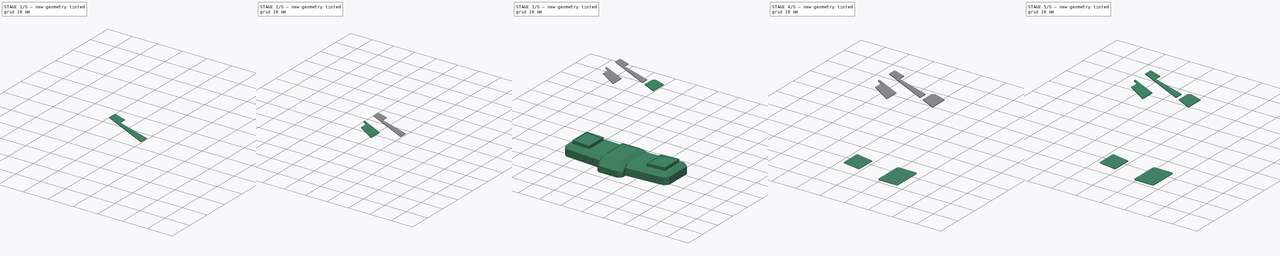
[diagram: build sequence overview — one tinted view per stage of 5, left to right]
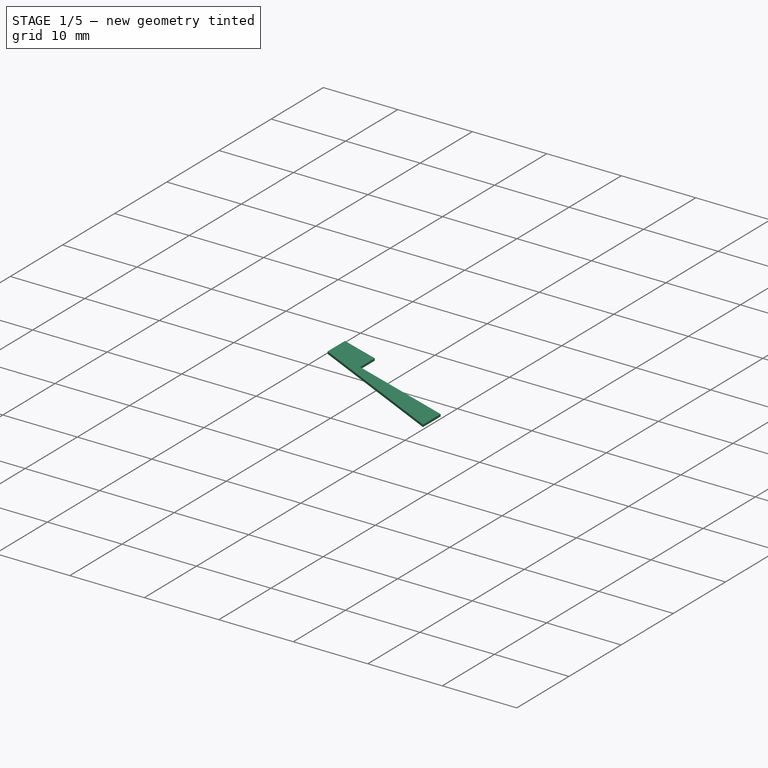
[diagram: stage 1 of 5 — iso view after this stage's code; geometry added in this stage tinted green]
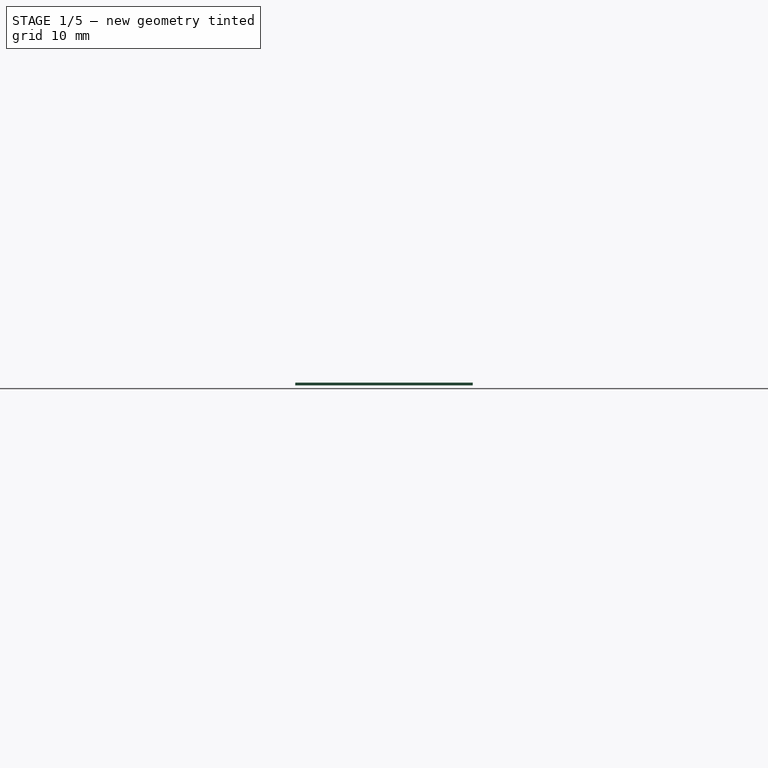
[diagram: stage 1 of 5 — front view after this stage's code; geometry added in this stage tinted green]
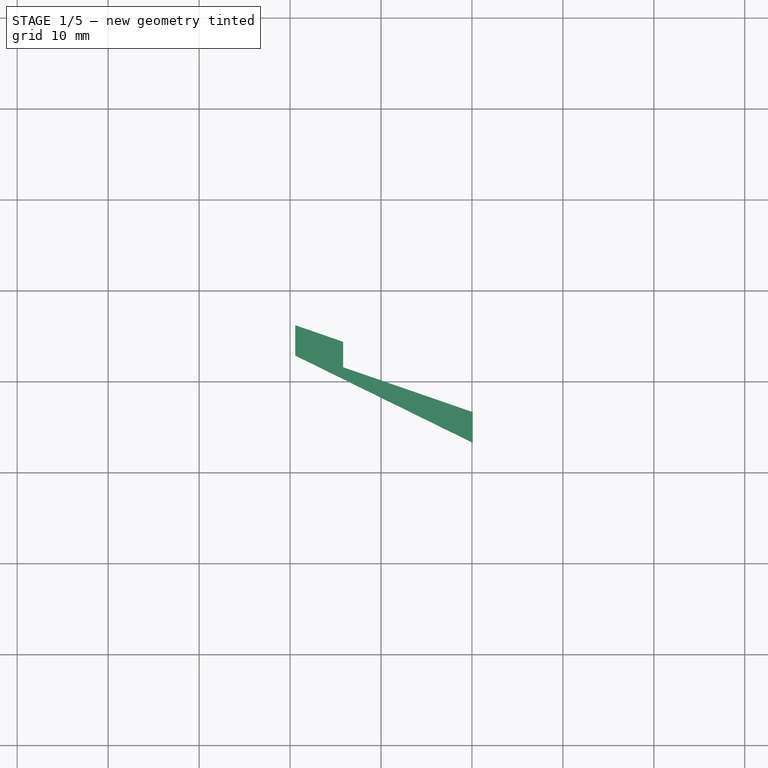
[diagram: stage 1 of 5 — top view after this stage's code; geometry added in this stage tinted green]
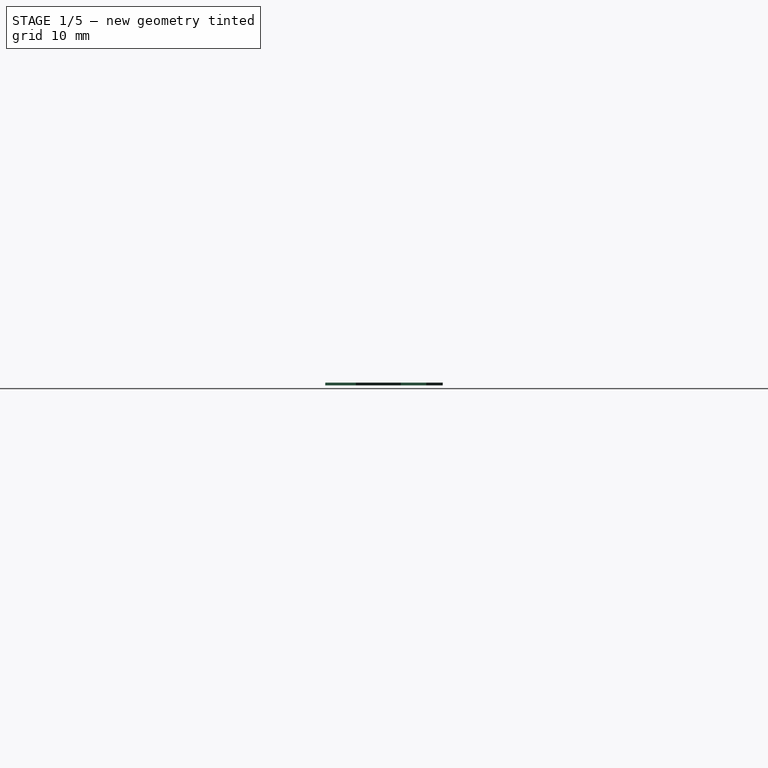
[diagram: stage 1 of 5 — right view after this stage's code; geometry added in this stage tinted green]
FCSTD DOCUMENT  (FreeCAD 1.0R39319 (Git))
Label: Stickered_Parts
License: All rights reserved
LicenseURL: https://en.wikipedia.org/wiki/All_rights_reserved
objects: Sketcher::SketchObject×17, PartDesign::Pocket×14, PartDesign::Body×7, Image::ImagePlane×5, PartDesign::SubShapeBinder×5, PartDesign::Pad×5, Part::Feature×2, PartDesign::FeatureBase×2
note: 109 computed .brp shape members not serialized (recipe doc carries the construction recipe); baked Part::Feature solids carry a one-line shape summary decoded from their .brp

FEATURE [PartDesign::Body] Body  label="Waist_Stickered"
  AllowCompound = false
  BaseFeature = -> Part__Feature
  Group = -> [BaseFeature,Sketch,Pocket]
  Origin = -> Origin
  Tip = -> Pocket
FEATURE [Part::Feature] Part__Feature001  label="Pre_Chestplate"
  Placement = pos=(16,37,6) rot=(0,0,1;0rad)
  shape: bbox 96.99 x 47.22 x 18.15 mm, 589 faces (baked)
FEATURE [Image::ImagePlane] Sticker003  label="Sticker3_Base"
  Placement = pos=(4.45182,53.7807,0) rot=(0,0,-1;0.331613rad)
  XSize = 8.00218
  YSize = 8.30367
FEATURE [Image::ImagePlane] Sticker004  label="Sticker4_Base"
  Placement = pos=(-14.3706,51.0929,-4.4e-15) rot=(0.85264,0.522499,0;3.14159rad)
  XSize = 8.27
  YSize = 16.34
FEATURE [Image::ImagePlane] Sticker3  label="Sticker5_Base"
  Placement = pos=(-9.55677,59.9563,-4.2e-15) rot=(0.843391,0.5373,0;3.14159rad)
  XSize = 4.64
  YSize = 26.81
FEATURE [PartDesign::FeatureBase] BaseFeature001
  BaseFeature = -> Part__Feature001
  Suppressed = false
FEATURE [PartDesign::Pocket] Pocket001
  BaseFeature = -> BaseFeature001
  Direction = (0,0,-1)
  Length = 0.3
  Length2 = 5
  Profile = -> BaseFeature001 [Face462,Face463,Face461,Face464,Face466,Face465]
  Refine = true
  Suppressed = false
  Type = 0
FEATURE [PartDesign::Body] Body005  label="Sticker4"
  AllowCompound = false
  Group = -> [Binder003,Sketch011,Pad003,Sketch012,Pocket010,Sketch013,Pocket011]
  Origin = -> Origin005
  Tip = -> Pocket011
FEATURE [PartDesign::SubShapeBinder] Binder004
  BindCopyOnChange = 0
  BindMode = 0
  ClaimChildren = false
  Context = -> Body006 [Binder004.]
  Fuse = false
  MakeFace = true
  OffsetFill = false
  OffsetIntersection = false
  OffsetJoinType = 0
  OffsetOpenResult = false
  PartialLoad = false
  Refine = true
  Relative = true
  Support = -> [Body001[Pocket001.Face1]]
  _Version = 2
FEATURE [Sketcher::SketchObject] Sketch014
  ArcFitTolerance = 1e-06
  AttachmentSupport = -> [Binder004]
  ExternalGeometry = -> [Binder004]
  FullyConstrained = false
  MakeInternals = false
  MapMode = 5
  Placement = pos=(0,0,10.4) rot=(0,0,1;0rad)
  sketch-geometry (9):
    g0: LineSegment StartX=-19.4323 StartY=66.227 StartZ=0 EndX=-19.4323 EndY=62.8892 EndZ=0
    g1: LineSegment StartX=-19.4323 StartY=62.8892 StartZ=0 EndX=0.0923998 EndY=53.2968 EndZ=0
    g2: LineSegment StartX=0.0923998 StartY=53.2968 StartZ=0 EndX=0.0923998 EndY=56.6682 EndZ=0
    g3: LineSegment StartX=0.0923998 StartY=56.6682 StartZ=0 EndX=-14.1681 EndY=61.6047 EndZ=0
    g4: LineSegment StartX=-14.1681 StartY=61.6047 StartZ=0 EndX=-14.1681 EndY=64.4047 EndZ=0
    g5: LineSegment StartX=-14.1681 StartY=64.4047 StartZ=0 EndX=-19.4323 EndY=66.227 EndZ=0
    g6: LineSegment [constr] StartX=-19.0535 StartY=66.0958 StartZ=0 EndX=-19.0273 EndY=66.1714 EndZ=0
    g7: LineSegment [constr] StartX=-18.7308 StartY=62.5445 StartZ=0 EndX=-18.7661 EndY=62.4727 EndZ=0
    g8: LineSegment [constr] StartX=-1.373 StartY=57.2601 StartZ=0 EndX=-1.39917 EndY=57.1845 EndZ=0
  constraints (27):
    c: Vertical(g0)
    c: Coincident(g1,g0)
    c: Coincident(g2,g1)
    c: Vertical(g2)
    c: Coincident(g3,g2)
    c: Coincident(g4,g3)
    c: Vertical(g4)
    c: Coincident(g5,g4)
    c: Coincident(g5,g0)
    c: Parallel(g-3,g5)
    c: Parallel(g1,g-5)
    c: Parallel(g3,g-7)
    c: DistanceX(g2,g-8) = 0.08
    c: DistanceX(g4,g-4) = 0.08
    c: DistanceX(g-6,g0) = 0.08
    c: PointOnObject(g6,g5)
    c: PointOnObject(g6,g-3)
    c: PointOnObject(g7,g1)
    c: PointOnObject(g7,g-5)
    c: PointOnObject(g8,g-7)
    c: PointOnObject(g8,g3)
    c: Perpendicular(g-7,g8)
    c: Perpendicular(g-5,g7)
    c: Perpendicular(g6,g-3)
    c: Distance(g6) = 0.08
    c: Distance(g7) = 0.08
    c: Distance(g8) = 0.08
FEATURE [PartDesign::Pad] Pad004
  Direction = (0,0,1)
  Length = 0.3
  Length2 = 10
  Profile = -> Sketch014
  ReferenceAxis = -> Sketch014 [N_Axis]
  Refine = true
  Suppressed = false
  Type = 0
FEATURE [Sketcher::SketchObject] Sketch015
  ArcFitTolerance = 1e-06
  AttachmentSupport = -> [Pad004]
  ExternalGeometry = -> [Pad004]
  FullyConstrained = false
  MakeInternals = false
  MapMode = 5
  Placement = pos=(0,0,10.7) rot=(0,0,1;0rad)
  sketch-geometry (70):
    g0: LineSegment StartX=-4.21522 StartY=58.1593 StartZ=0 EndX=-3.86696 EndY=58.0388 EndZ=0
    g1: LineSegment StartX=-3.86696 StartY=58.0388 StartZ=0 EndX=-3.86696 EndY=55.242 EndZ=0
    g2: LineSegment StartX=-3.86696 StartY=55.242 StartZ=0 EndX=-4.21522 EndY=55.4131 EndZ=0
    g3: LineSegment StartX=-4.21522 StartY=55.4131 StartZ=0 EndX=-4.21522 EndY=58.1593 EndZ=0
    g4: LineSegment StartX=-5.32199 StartY=58.5425 StartZ=0 EndX=-5.32199 EndY=55.9568 EndZ=0
    g5: LineSegment StartX=-5.32199 StartY=55.9568 StartZ=0 EndX=-5.67908 EndY=56.1323 EndZ=0
    g6: LineSegment StartX=-5.67908 StartY=56.1323 StartZ=0 EndX=-5.67908 EndY=56.6621 EndZ=0
    g7: LineSegment StartX=-5.67908 StartY=56.6621 StartZ=0 EndX=-13.8098 EndY=60.6305 EndZ=0
    g8: LineSegment StartX=-13.8098 StartY=60.6305 StartZ=0 EndX=-5.70539 EndY=57.6848 EndZ=0
    g9: LineSegment StartX=-5.70539 StartY=57.6848 StartZ=0 EndX=-5.70539 EndY=58.6752 EndZ=0
    g10: LineSegment StartX=-5.32199 StartY=58.5425 StartZ=0 EndX=-5.70539 EndY=58.6752 EndZ=0
    g11: LineSegment StartX=-5.72662 StartY=57.4462 StartZ=0 EndX=-5.72662 EndY=56.9969 EndZ=0
    g12: LineSegment StartX=-5.72662 StartY=56.9969 StartZ=0 EndX=-9.3322 EndY=58.7567 EndZ=0
    g13: LineSegment StartX=-9.3322 StartY=58.7567 StartZ=0 EndX=-5.72662 EndY=57.4462 EndZ=0
    g14: LineSegment StartX=-2.2971 StartY=56.1863 StartZ=0 EndX=-2.2971 EndY=55.2818 EndZ=0
    g15: LineSegment StartX=-2.2971 StartY=55.2818 StartZ=0 EndX=-0.333955 EndY=54.3174 EndZ=0
    g16: LineSegment StartX=-0.333955 StartY=54.3174 StartZ=0 EndX=-0.333955 EndY=55.5067 EndZ=0
    g17: LineSegment StartX=-0.333955 StartY=55.5067 StartZ=0 EndX=-2.2971 EndY=56.1863 EndZ=0
    g18: LineSegment StartX=-0.334809 StartY=55.5061 StartZ=0 EndX=-2.29625 EndY=56.1851 EndZ=0
    g19: LineSegment StartX=-2.29625 StartY=56.1851 StartZ=0 EndX=-2.29625 EndY=55.2824 EndZ=0
    g20: LineSegment StartX=-2.29625 StartY=55.2824 StartZ=0 EndX=-0.334809 EndY=54.3187 EndZ=0
    g21: LineSegment StartX=-0.334809 StartY=54.3187 StartZ=0 EndX=-0.334809 EndY=55.5061 EndZ=0
    g22: LineSegment StartX=-9.33191 StartY=58.7575 StartZ=0 EndX=-5.72633 EndY=57.447 EndZ=0
    g23: ArcOfCircle CenterX=-5.72662 CenterY=57.4462 CenterZ=0 NormalX=0 NormalY=0 NormalZ=-1 AngleXU=0.348628 Radius=0.000854302 StartAngle=1.5708 EndAngle=2.79296
    g24: LineSegment StartX=-5.72576 StartY=57.4462 StartZ=0 EndX=-5.72576 EndY=56.9969 EndZ=0
    g25: ArcOfCircle CenterX=-5.72662 CenterY=56.9969 CenterZ=0 NormalX=0 NormalY=0 NormalZ=-1 AngleXU=1.5708 Radius=0.000854302 StartAngle=1.5708 EndAngle=3.59566
    g26: LineSegment StartX=-5.72699 StartY=56.9961 StartZ=0 EndX=-9.33257 EndY=58.7559 EndZ=0
    g27: ArcOfCircle CenterX=-9.3322 CenterY=58.7567 CenterZ=0 NormalX=0 NormalY=0 NormalZ=-1 AngleXU=-2.68753 Radius=0.000854302 StartAngle=1.5708 EndAngle=4.60695
    g28: ArcOfCircle CenterX=-5.70539 CenterY=57.6848 CenterZ=0 NormalX=0 NormalY=0 NormalZ=-1 AngleXU=1.5708 Radius=0.000854445 StartAngle=1.5708 EndAngle=3.49022
    g29: LineSegment StartX=-5.70454 StartY=57.6848 StartZ=0 EndX=-5.70454 EndY=58.674 EndZ=0
    g30: LineSegment StartX=-5.32284 StartY=58.5419 StartZ=0 EndX=-5.70454 EndY=58.674 EndZ=0
    g31: LineSegment StartX=-5.32284 StartY=58.5419 StartZ=0 EndX=-5.32284 EndY=55.9582 EndZ=0
    g32: LineSegment StartX=-5.32284 StartY=55.9582 StartZ=0 EndX=-5.67823 EndY=56.1328 EndZ=0
    g33: LineSegment StartX=-5.67823 StartY=56.1328 StartZ=0 EndX=-5.67823 EndY=56.6621 EndZ=0
    g34: ArcOfCircle CenterX=-5.67908 CenterY=56.6621 CenterZ=0 NormalX=0 NormalY=0 NormalZ=-1 AngleXU=0.454062 Radius=0.000854196 StartAngle=1.57079 EndAngle=2.68753
    g35: LineSegment StartX=-5.67871 StartY=56.6629 StartZ=0 EndX=-13.7949 EndY=60.6242 EndZ=0
    g36: LineSegment StartX=-13.7949 StartY=60.6242 StartZ=0 EndX=-5.70568 EndY=57.684 EndZ=0
    g37: LineSegment StartX=-4.21608 StartY=55.4131 StartZ=0 EndX=-4.21608 EndY=58.1593 EndZ=0
    g38: ArcOfCircle CenterX=-4.21522 CenterY=58.1593 CenterZ=0 NormalX=0 NormalY=0 NormalZ=-1 AngleXU=-1.5708 Radius=0.000854302 StartAngle=1.5708 EndAngle=3.47485
    g39: LineSegment StartX=-4.21494 StartY=58.1601 StartZ=0 EndX=-3.86668 EndY=58.0396 EndZ=0
    g40: ArcOfCircle CenterX=-3.86696 CenterY=58.0388 CenterZ=0 NormalX=0 NormalY=0 NormalZ=-1 AngleXU=0.333257 Radius=0.000854302 StartAngle=1.5708 EndAngle=2.80834
    g41: LineSegment StartX=-3.86611 StartY=58.0388 StartZ=0 EndX=-3.86611 EndY=55.242 EndZ=0
    g42: ArcOfCircle CenterX=-3.86696 CenterY=55.242 CenterZ=0 NormalX=0 NormalY=0 NormalZ=-1 AngleXU=1.5708 Radius=0.000854302 StartAngle=1.5708 EndAngle=3.59825
    g43: LineSegment StartX=-3.86734 StartY=55.2412 StartZ=0 EndX=-4.2156 EndY=55.4123 EndZ=0
    g44: ArcOfCircle CenterX=-4.21522 CenterY=55.4131 CenterZ=0 NormalX=0 NormalY=0 NormalZ=-1 AngleXU=-2.68493 Radius=0.000854302 StartAngle=1.5708 EndAngle=2.68493
    g45: LineSegment StartX=-2.31081 StartY=56.4276 StartZ=0 EndX=-0.10463 EndY=55.6639 EndZ=0
    g46: LineSegment StartX=-0.10463 StartY=55.6639 StartZ=0 EndX=-0.10463 EndY=53.9885 EndZ=0
    g47: ArcOfCircle CenterX=-0.103776 CenterY=53.9885 CenterZ=0 NormalX=0 NormalY=0 NormalZ=-1 AngleXU=1.5708 Radius=0.000854302 StartAngle=1.5708 EndAngle=4.71239
    g48: LineSegment StartX=-0.102921 StartY=55.6645 StartZ=0 EndX=-0.102921 EndY=53.9885 EndZ=0
    g49: ArcOfCircle CenterX=-0.103776 CenterY=55.6645 CenterZ=0 NormalX=0 NormalY=0 NormalZ=-1 AngleXU=0.333257 Radius=0.000854302 StartAngle=1.5708 EndAngle=2.80834
    g50: LineSegment StartX=-2.30967 StartY=56.429 StartZ=0 EndX=-0.103496 EndY=55.6653 EndZ=0
    g51: LineSegment StartX=-2.30967 StartY=57.5 StartZ=0 EndX=-2.30967 EndY=56.429 EndZ=0
    g52: ArcOfCircle CenterX=-2.31053 CenterY=57.5 CenterZ=0 NormalX=0 NormalY=0 NormalZ=-1 AngleXU=0.333257 Radius=0.000854302 StartAngle=1.5708 EndAngle=2.80834
    g53: LineSegment StartX=-2.79826 StartY=57.6697 StartZ=0 EndX=-2.31025 EndY=57.5008 EndZ=0
    g54: ArcOfCircle CenterX=-2.79854 CenterY=57.6689 CenterZ=0 NormalX=0 NormalY=0 NormalZ=-1 AngleXU=-1.5708 Radius=0.000854302 StartAngle=1.5708 EndAngle=3.47485
    g55: LineSegment StartX=-2.79939 StartY=54.7171 StartZ=0 EndX=-2.79939 EndY=57.6689 EndZ=0
    g56: ArcOfCircle CenterX=-2.79854 CenterY=54.7171 CenterZ=0 NormalX=0 NormalY=0 NormalZ=-1 AngleXU=-2.68493 Radius=0.000854302 StartAngle=1.5708 EndAngle=2.68493
    g57: LineSegment StartX=-2.30484 StartY=54.4736 StartZ=0 EndX=-2.79891 EndY=54.7163 EndZ=0
    g58: ArcOfCircle CenterX=-2.30446 CenterY=54.4743 CenterZ=0 NormalX=0 NormalY=0 NormalZ=-1 AngleXU=1.5708 Radius=0.000854302 StartAngle=1.5708 EndAngle=3.59825
    g59: LineSegment StartX=-2.30361 StartY=55.0389 StartZ=0 EndX=-2.30361 EndY=54.4743 EndZ=0
    g60: LineSegment StartX=-0.119896 StartY=53.966 StartZ=0 EndX=-2.30361 EndY=55.0389 EndZ=0
    g61: ArcOfCircle CenterX=-0.11952 CenterY=53.9668 CenterZ=0 NormalX=0 NormalY=0 NormalZ=-1 AngleXU=0.45666 Radius=0.000854302 StartAngle=1.5708 EndAngle=4.71239
    g62: LineSegment StartX=-0.119143 StartY=53.9676 StartZ=0 EndX=-2.30408 EndY=55.041 EndZ=0
    g63: ArcOfCircle CenterX=-2.30446 CenterY=55.0402 CenterZ=0 NormalX=0 NormalY=0 NormalZ=-1 AngleXU=-1.5708 Radius=0.000854302 StartAngle=1.5708 EndAngle=3.59825
    g64: LineSegment StartX=-2.30531 StartY=55.0402 StartZ=0 EndX=-2.30531 EndY=54.4757 EndZ=0
    g65: LineSegment StartX=-2.30531 StartY=54.4757 StartZ=0 EndX=-2.79768 EndY=54.7176 EndZ=0
    g66: LineSegment StartX=-2.79768 StartY=54.7176 StartZ=0 EndX=-2.79768 EndY=57.6677 EndZ=0
    g67: LineSegment StartX=-2.79768 StartY=57.6677 StartZ=0 EndX=-2.31138 EndY=57.4994 EndZ=0
    g68: LineSegment StartX=-2.31138 StartY=57.4994 StartZ=0 EndX=-2.31138 EndY=56.4284 EndZ=0
    g69: ArcOfCircle CenterX=-2.31053 CenterY=56.4284 CenterZ=0 NormalX=0 NormalY=0 NormalZ=-1 AngleXU=-2.80834 Radius=0.000854302 StartAngle=1.5708 EndAngle=2.80834
  constraints (88):
    c: PointOnObject(g0,g-4)
    c: PointOnObject(g0,g-4)
    c: Coincident(g1,g0)
    c: PointOnObject(g1,g-5)
    c: Coincident(g2,g1)
    c: PointOnObject(g2,g-5)
    c: Coincident(g3,g2)
    c: Coincident(g3,g0)
    c: Vertical(g3)
    c: Vertical(g1)
    c: PointOnObject(g4,g-4)
    c: PointOnObject(g4,g-5)
    c: Vertical(g4)
    c: Coincident(g5,g4)
    c: PointOnObject(g5,g-5)
    c: Coincident(g6,g5)
    c: Vertical(g6)
    c: Coincident(g7,g6)
    c: Coincident(g8,g7)
    c: Coincident(g9,g8)
    c: PointOnObject(g9,g-4)
    c: Vertical(g9)
    c: Coincident(g10,g4)
    c: Coincident(g10,g9)
    c: Vertical(g11)
    c: Coincident(g12,g11)
    c: Coincident(g13,g12)
    c: Coincident(g13,g11)
    c: Parallel(g8,g13)
    c: Parallel(g12,g7)
    c: Vertical(g14)
    c: Coincident(g15,g14)
    c: Coincident(g16,g15)
    c: Vertical(g16)
    c: Coincident(g17,g16)
    c: Coincident(g17,g14)
    c: Coincident(g18,g19)
    c: Coincident(g18,g21)
    c: Coincident(g19,g20)
    c: Coincident(g20,g21)
    c: Tangent(g22,g23) = 1.5708
    c: Tangent(g22,g27) = 1.5708
    c: Tangent(g23,g24) = 1.5708
    c: Tangent(g24,g25) = 1.5708
    c: Tangent(g25,g26) = 1.5708
    c: Tangent(g26,g27) = 1.5708
    c: Tangent(g28,g29) = -1.5708
    c: Tangent(g28,g36) = -1.5708
    c: Coincident(g29,g30)
    c: Coincident(g30,g31)
    c: Coincident(g31,g32)
    c: Coincident(g32,g33)
    c: Tangent(g33,g34) = -1.5708
    c: Tangent(g34,g35) = -1.5708
    c: Coincident(g35,g36)
    c: Tangent(g37,g38) = 1.5708
    c: Tangent(g37,g44) = 1.5708
    c: Tangent(g38,g39) = 1.5708
    c: Tangent(g39,g40) = 1.5708
    c: Tangent(g40,g41) = 1.5708
    c: Tangent(g41,g42) = 1.5708
    c: Tangent(g42,g43) = 1.5708
    c: Tangent(g43,g44) = 1.5708
    c: Coincident(g45,g46)
    c: Tangent(g45,g69) = -1.5708
    c: Tangent(g46,g47) = -1.5708
    c: Tangent(g47,g48) = 1.5708
    c: Tangent(g48,g49) = 1.5708
    c: Tangent(g49,g50) = 1.5708
    c: Coincident(g50,g51)
    c: Tangent(g51,g52) = 1.5708
    c: Tangent(g52,g53) = 1.5708
    c: Tangent(g53,g54) = 1.5708
    c: Tangent(g54,g55) = 1.5708
    c: Tangent(g55,g56) = 1.5708
    c: Tangent(g56,g57) = 1.5708
    c: Tangent(g57,g58) = 1.5708
    c: Tangent(g58,g59) = 1.5708
    c: Coincident(g59,g60)
    c: Tangent(g60,g61) = 1.5708
    c: Tangent(g61,g62) = -1.5708
    c: Tangent(g62,g63) = -1.5708
    c: Tangent(g63,g64) = -1.5708
    c: Coincident(g64,g65)
    c: Coincident(g65,g66)
    c: Coincident(g66,g67)
    c: Coincident(g67,g68)
    c: Tangent(g68,g69) = -1.5708
FEATURE [PartDesign::Pocket] Pocket012
  BaseFeature = -> Pad004
  Direction = (0,0,-1)
  Length = 0.01
  Length2 = 5
  Profile = -> Sketch015
  ReferenceAxis = -> Sketch015 [N_Axis]
  Refine = true
  Suppressed = false
  Type = 0
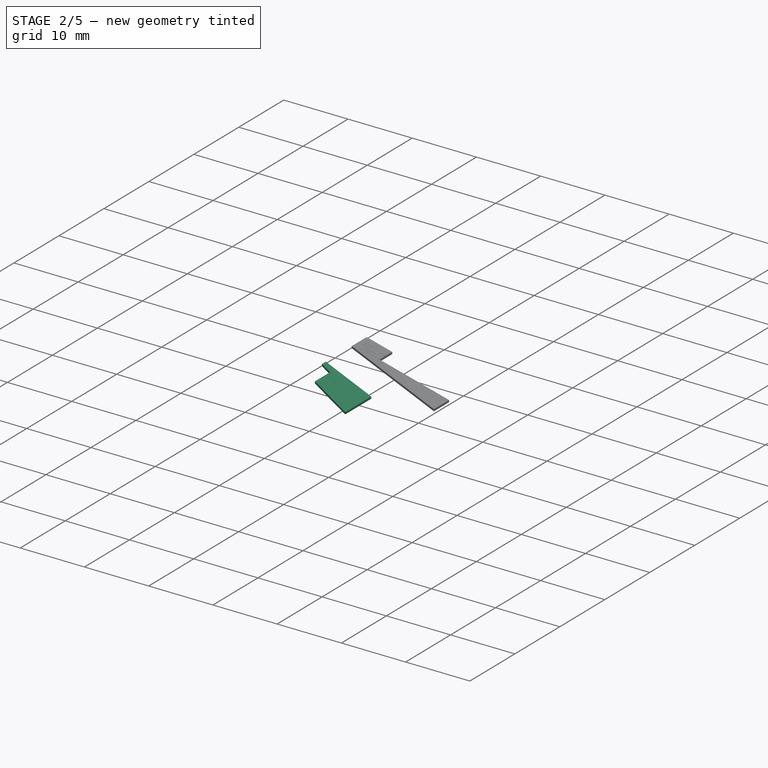
[diagram: stage 2 of 5 — iso view after this stage's code; geometry added in this stage tinted green]
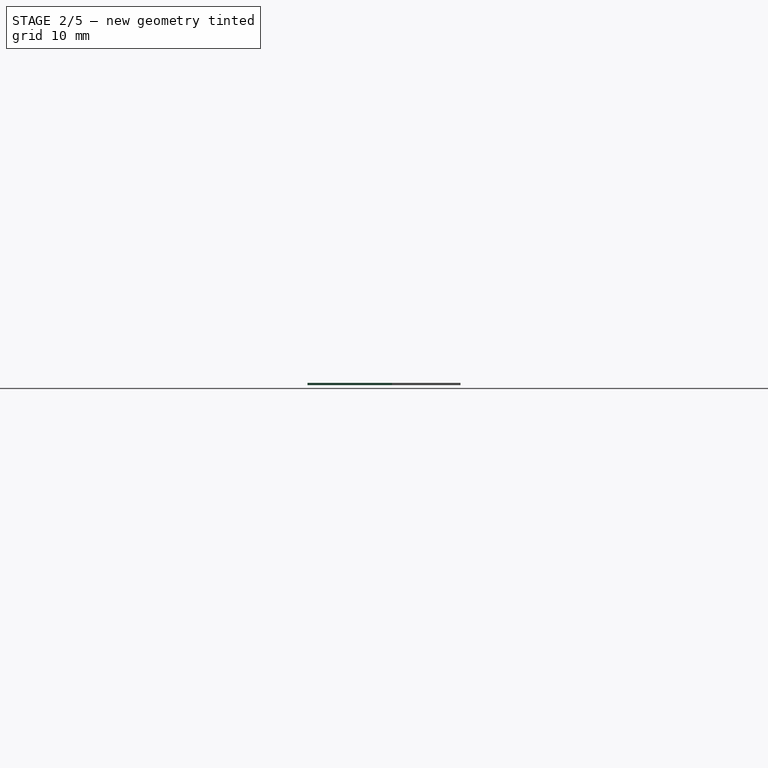
[diagram: stage 2 of 5 — front view after this stage's code; geometry added in this stage tinted green]
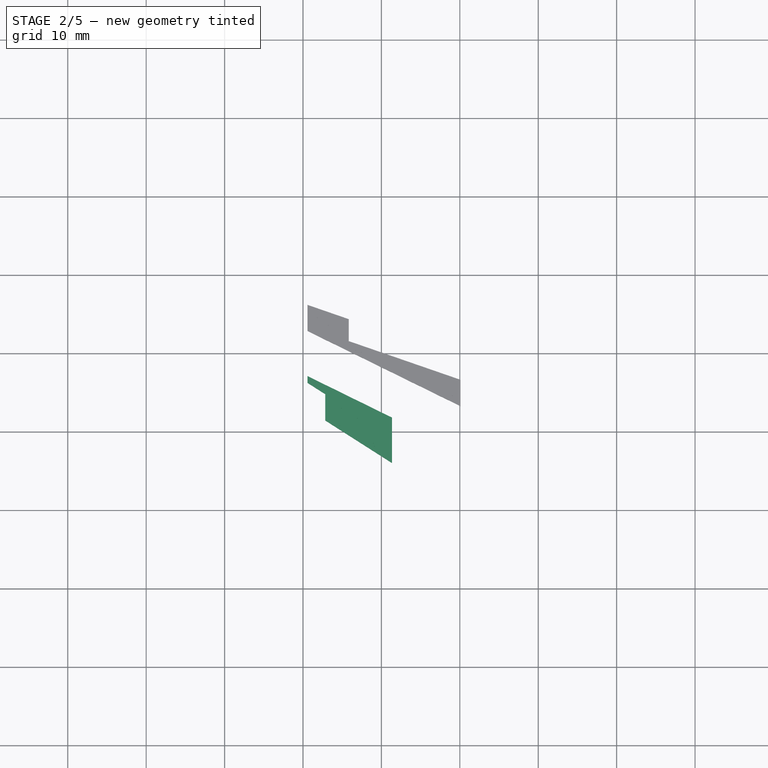
[diagram: stage 2 of 5 — top view after this stage's code; geometry added in this stage tinted green]
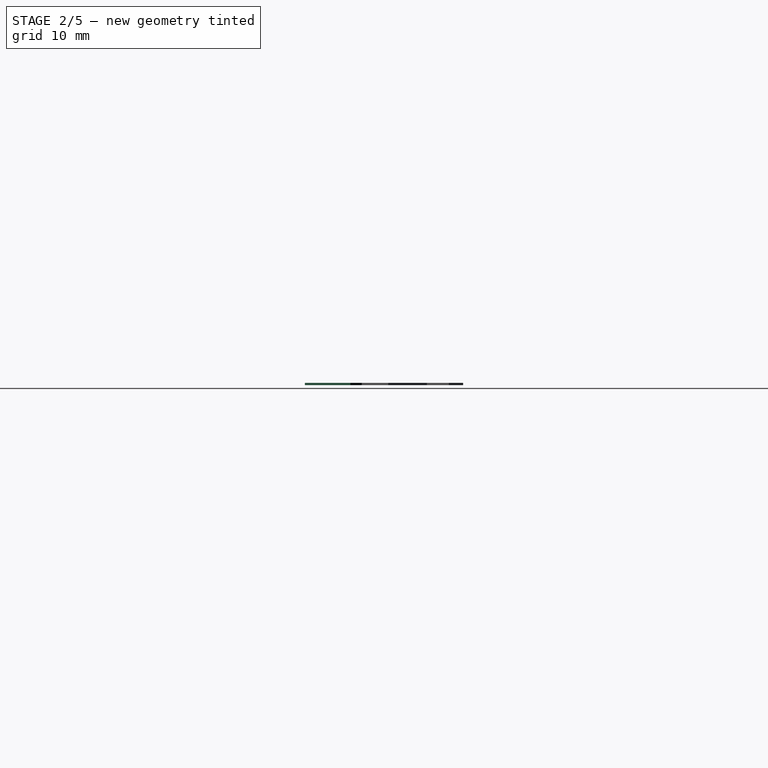
[diagram: stage 2 of 5 — right view after this stage's code; geometry added in this stage tinted green]
FEATURE [PartDesign::Body] Body004  label="Sticker3"
  AllowCompound = false
  Group = -> [Binder002,Sketch009,Pad002,Sketch010,Pocket008,Pocket009]
  Origin = -> Origin004
  Tip = -> Pocket009
FEATURE [PartDesign::SubShapeBinder] Binder003
  BindCopyOnChange = 0
  BindMode = 0
  ClaimChildren = false
  Context = -> Body005 [Binder003.]
  Fuse = false
  MakeFace = true
  OffsetFill = false
  OffsetIntersection = false
  OffsetJoinType = 0
  OffsetOpenResult = false
  PartialLoad = false
  Refine = true
  Relative = true
  Support = -> [Body001[Pocket001.Face573]]
  _Version = 2
FEATURE [Sketcher::SketchObject] Sketch011
  ArcFitTolerance = 1e-06
  AttachmentSupport = -> [Binder003]
  ExternalGeometry = -> [Binder003]
  FullyConstrained = false
  MakeInternals = false
  MapMode = 5
  Placement = pos=(0,0,10.4) rot=(0,0,1;0rad)
  sketch-geometry (9):
    g0: LineSegment StartX=-19.4323 StartY=57.1458 StartZ=0 EndX=-8.64245 EndY=51.8448 EndZ=0
    g1: LineSegment StartX=-8.64245 StartY=51.8448 StartZ=0 EndX=-8.64245 EndY=46.0405 EndZ=0
    g2: LineSegment StartX=-8.64245 StartY=46.0405 StartZ=0 EndX=-17.1675 EndY=51.4756 EndZ=0
    g3: LineSegment StartX=-17.1675 StartY=51.4756 StartZ=0 EndX=-17.1675 EndY=54.8304 EndZ=0
    g4: LineSegment StartX=-17.1675 StartY=54.8304 StartZ=0 EndX=-19.4323 EndY=56.2743 EndZ=0
    g5: LineSegment StartX=-19.4323 StartY=56.2743 StartZ=0 EndX=-19.4323 EndY=57.1458 EndZ=0
    g6: LineSegment [constr] StartX=-15.5056 StartY=50.4161 StartZ=0 EndX=-15.5486 EndY=50.3486 EndZ=0
    g7: LineSegment [constr] StartX=-17.2921 StartY=56.0943 StartZ=0 EndX=-17.2568 EndY=56.1661 EndZ=0
    g8: LineSegment [constr] StartX=-17.5392 StartY=55.0674 StartZ=0 EndX=-17.5822 EndY=54.9999 EndZ=0
  constraints (27):
    c: Coincident(g1,g0)
    c: Vertical(g1)
    c: Coincident(g2,g1)
    c: Coincident(g3,g2)
    c: Vertical(g3)
    c: Coincident(g4,g3)
    c: Coincident(g5,g4)
    c: Coincident(g5,g0)
    c: Vertical(g5)
    c: Parallel(g-3,g0)
    c: Parallel(g2,g-5)
    c: DistanceX(g-8,g0) = 0.08
    c: DistanceX(g-7,g3) = 0.08
    c: DistanceX(g0,g-4) = 0.08
    c: PointOnObject(g6,g2)
    c: PointOnObject(g6,g-5)
    c: PointOnObject(g7,g0)
    c: PointOnObject(g7,g-3)
    c: Perpendicular(g-3,g7)
    c: PointOnObject(g8,g4)
    c: PointOnObject(g8,g-7)
    c: Perpendicular(g8,g-7)
    c: Perpendicular(g6,g-5)
    c: Distance(g6) = 0.08
    c: Distance(g8) = 0.08
    c: Distance(g7) = 0.08
    c: Parallel(g4,g-7)
FEATURE [PartDesign::Pad] Pad003
  Direction = (0,0,1)
  Length = 0.3
  Length2 = 10
  Profile = -> Sketch011
  ReferenceAxis = -> Sketch011 [N_Axis]
  Refine = true
  Suppressed = false
  Type = 0
FEATURE [Sketcher::SketchObject] Sketch012
  ArcFitTolerance = 1e-06
  AttachmentSupport = -> [Pad003]
  ExternalGeometry = -> [Pad003]
  FullyConstrained = false
  MakeInternals = false
  MapMode = 5
  Placement = pos=(0,0,10.7) rot=(0,0,1;0rad)
  sketch-geometry (107):
    g0: ArcOfCircle CenterX=-17.1675 CenterY=54.8304 CenterZ=0 NormalX=0 NormalY=0 NormalZ=-1 AngleXU=-2.57402 Radius=0.000935564 StartAngle=1.5708 EndAngle=4.71239
    g1: LineSegment StartX=-16.2781 StartY=54.2645 StartZ=0 EndX=-17.167 EndY=54.8312 EndZ=0
    g2: ArcOfCircle CenterX=-16.2786 CenterY=54.2637 CenterZ=0 NormalX=0 NormalY=0 NormalZ=-1 AngleXU=0.567571 Radius=0.000935564 StartAngle=1.5708 EndAngle=2.57402
    g3: LineSegment StartX=-16.2777 StartY=51.4133 StartZ=0 EndX=-16.2777 EndY=54.2637 EndZ=0
    g4: LineSegment StartX=-15.0084 StartY=50.6041 StartZ=0 EndX=-16.2777 EndY=51.4133 EndZ=0
    g5: LineSegment StartX=-15.0084 StartY=52.6442 StartZ=0 EndX=-15.0084 EndY=50.6041 EndZ=0
    g6: ArcOfCircle CenterX=-15.0075 CenterY=52.6442 CenterZ=0 NormalX=0 NormalY=0 NormalZ=-1 AngleXU=-1.5708 Radius=0.000935564 StartAngle=1.5708 EndAngle=3.70916
    g7: LineSegment StartX=-14.4864 StartY=52.3131 StartZ=0 EndX=-15.007 EndY=52.6449 EndZ=0
    g8: ArcOfCircle CenterX=-14.4869 CenterY=52.3123 CenterZ=0 NormalX=0 NormalY=0 NormalZ=-1 AngleXU=0.567571 Radius=0.000935564 StartAngle=1.5708 EndAngle=2.57402
    g9: LineSegment StartX=-14.4859 StartY=50.2914 StartZ=0 EndX=-14.4859 EndY=52.3123 EndZ=0
    g10: LineSegment StartX=-13.2994 StartY=49.5349 StartZ=0 EndX=-14.4859 EndY=50.2914 EndZ=0
    g11: LineSegment StartX=-13.2994 StartY=51.5969 StartZ=0 EndX=-13.2994 EndY=49.5349 EndZ=0
    g12: ArcOfCircle CenterX=-13.2985 CenterY=51.5969 CenterZ=0 NormalX=0 NormalY=0 NormalZ=-1 AngleXU=-1.5708 Radius=0.000935564 StartAngle=1.5708 EndAngle=3.70916
    g13: LineSegment StartX=-12.8977 StartY=51.3425 StartZ=0 EndX=-13.298 EndY=51.5977 EndZ=0
    g14: ArcOfCircle CenterX=-12.8983 CenterY=51.3417 CenterZ=0 NormalX=0 NormalY=0 NormalZ=-1 AngleXU=0.567571 Radius=0.000935564 StartAngle=1.5708 EndAngle=2.57402
    g15: LineSegment StartX=-12.8973 StartY=49.2143 StartZ=0 EndX=-12.8973 EndY=51.3417 EndZ=0
    g16: LineSegment StartX=-11.8768 StartY=48.5636 StartZ=0 EndX=-12.8973 EndY=49.2143 EndZ=0
    g17: LineSegment StartX=-11.8768 StartY=51.02 StartZ=0 EndX=-11.8768 EndY=48.5636 EndZ=0
    g18: ArcOfCircle CenterX=-11.8759 CenterY=51.02 CenterZ=0 NormalX=0 NormalY=0 NormalZ=-1 AngleXU=-1.5708 Radius=0.000935564 StartAngle=1.5708 EndAngle=3.70916
    g19: LineSegment StartX=-11.4819 StartY=50.77 StartZ=0 EndX=-11.8753 EndY=51.0208 EndZ=0
    g20: ArcOfCircle CenterX=-11.4824 CenterY=50.7692 CenterZ=0 NormalX=0 NormalY=0 NormalZ=-1 AngleXU=0.567571 Radius=0.000935564 StartAngle=1.5708 EndAngle=2.57402
    g21: LineSegment StartX=-11.4815 StartY=48.5457 StartZ=0 EndX=-11.4815 EndY=50.7692 EndZ=0
    g22: LineSegment StartX=-10.0201 StartY=47.614 StartZ=0 EndX=-11.4815 EndY=48.5457 EndZ=0
    g23: LineSegment StartX=-10.0201 StartY=52.5211 StartZ=0 EndX=-10.0201 EndY=47.614 EndZ=0
    g24: ArcOfCircle CenterX=-10.0191 CenterY=52.5211 CenterZ=0 NormalX=0 NormalY=0 NormalZ=-1 AngleXU=-1.5708 Radius=0.000935564 StartAngle=1.5708 EndAngle=4.71239
    g25: LineSegment StartX=-10.0182 StartY=52.5211 StartZ=0 EndX=-10.0182 EndY=47.6123 EndZ=0
    g26: ArcOfCircle CenterX=-10.0191 CenterY=47.6123 CenterZ=0 NormalX=0 NormalY=0 NormalZ=-1 AngleXU=1.5708 Radius=0.000935564 StartAngle=1.5708 EndAngle=3.70916
    g27: LineSegment StartX=-10.0196 StartY=47.6115 StartZ=0 EndX=-11.4829 EndY=48.5444 EndZ=0
    g28: ArcOfCircle CenterX=-11.4824 CenterY=48.5452 CenterZ=0 NormalX=0 NormalY=0 NormalZ=-1 AngleXU=-2.57402 Radius=0.000935564 StartAngle=1.5708 EndAngle=2.57402
    g29: LineSegment StartX=-11.4833 StartY=48.5452 StartZ=0 EndX=-11.4833 EndY=50.7687 EndZ=0
    g30: LineSegment StartX=-11.4833 StartY=50.7687 StartZ=0 EndX=-11.8749 EndY=51.0183 EndZ=0
    g31: LineSegment StartX=-11.8749 StartY=51.0183 StartZ=0 EndX=-11.8749 EndY=48.5619 EndZ=0
    g32: ArcOfCircle CenterX=-11.8759 CenterY=48.5619 CenterZ=0 NormalX=0 NormalY=0 NormalZ=-1 AngleXU=1.5708 Radius=0.000935564 StartAngle=1.5708 EndAngle=3.70916
    g33: LineSegment StartX=-11.8764 StartY=48.5611 StartZ=0 EndX=-12.8988 EndY=49.213 EndZ=0
    g34: ArcOfCircle CenterX=-12.8983 CenterY=49.2138 CenterZ=0 NormalX=0 NormalY=0 NormalZ=-1 AngleXU=-2.57402 Radius=0.000935564 StartAngle=1.5708 EndAngle=2.57402
    g35: LineSegment StartX=-12.8992 StartY=49.2138 StartZ=0 EndX=-12.8992 EndY=51.3412 EndZ=0
    g36: LineSegment StartX=-12.8992 StartY=51.3412 StartZ=0 EndX=-13.2975 EndY=51.5952 EndZ=0
    g37: LineSegment StartX=-13.2975 StartY=51.5952 StartZ=0 EndX=-13.2975 EndY=49.5332 EndZ=0
    g38: ArcOfCircle CenterX=-13.2985 CenterY=49.5332 CenterZ=0 NormalX=0 NormalY=0 NormalZ=-1 AngleXU=1.5708 Radius=0.000935564 StartAngle=1.5708 EndAngle=3.70916
    g39: LineSegment StartX=-13.299 StartY=49.5324 StartZ=0 EndX=-14.4874 EndY=50.29 EndZ=0
    g40: ArcOfCircle CenterX=-14.4869 CenterY=50.2908 CenterZ=0 NormalX=0 NormalY=0 NormalZ=-1 AngleXU=-2.57402 Radius=0.000935564 StartAngle=1.5708 EndAngle=2.57402
    g41: LineSegment StartX=-14.4878 StartY=50.2908 StartZ=0 EndX=-14.4878 EndY=52.3118 EndZ=0
    g42: LineSegment StartX=-14.4878 StartY=52.3118 StartZ=0 EndX=-15.0065 EndY=52.6425 EndZ=0
    g43: LineSegment StartX=-15.0065 StartY=52.6425 StartZ=0 EndX=-15.0065 EndY=50.6024 EndZ=0
    g44: ArcOfCircle CenterX=-15.0075 CenterY=50.6024 CenterZ=0 NormalX=0 NormalY=0 NormalZ=-1 AngleXU=1.5708 Radius=0.000935564 StartAngle=1.5708 EndAngle=3.70916
    g45: LineSegment StartX=-15.008 StartY=50.6016 StartZ=0 EndX=-16.2791 EndY=51.412 EndZ=0
    g46: ArcOfCircle CenterX=-16.2786 CenterY=51.4128 CenterZ=0 NormalX=0 NormalY=0 NormalZ=-1 AngleXU=-2.57402 Radius=0.000935564 StartAngle=1.5708 EndAngle=2.57402
    g47: LineSegment StartX=-16.2796 StartY=51.4128 StartZ=0 EndX=-16.2796 EndY=54.2632 EndZ=0
    g48: LineSegment StartX=-16.2796 StartY=54.2632 StartZ=0 EndX=-17.168 EndY=54.8296 EndZ=0
    g49: ArcOfCircle CenterX=-12.1044 CenterY=49.2571 CenterZ=0 NormalX=0 NormalY=0 NormalZ=-1 AngleXU=1.5708 Radius=0.000935564 StartAngle=1.5708 EndAngle=3.70916
    g50: LineSegment StartX=-12.1034 StartY=49.2571 StartZ=0 EndX=-12.1034 EndY=51.4189 EndZ=0
    g51: LineSegment StartX=-12.1034 StartY=51.4189 StartZ=0 EndX=-11.1733 EndY=50.8259 EndZ=0
    g52: LineSegment StartX=-11.1733 StartY=50.8259 StartZ=0 EndX=-11.1733 EndY=48.6489 EndZ=0
    g53: ArcOfCircle CenterX=-11.1724 CenterY=48.6489 CenterZ=0 NormalX=0 NormalY=0 NormalZ=-1 AngleXU=-2.57402 Radius=0.000935564 StartAngle=1.5708 EndAngle=2.57402
    g54: LineSegment StartX=-11.1729 StartY=48.6481 StartZ=0 EndX=-10.3872 EndY=48.1472 EndZ=0
    g55: ArcOfCircle CenterX=-10.3867 CenterY=48.148 CenterZ=0 NormalX=0 NormalY=0 NormalZ=-1 AngleXU=1.5708 Radius=0.000935564 StartAngle=1.5708 EndAngle=3.70916
    g56: LineSegment StartX=-10.3858 StartY=48.148 StartZ=0 EndX=-10.3858 EndY=52.7017 EndZ=0
    g57: ArcOfCircle CenterX=-10.3867 CenterY=52.7017 CenterZ=0 NormalX=0 NormalY=0 NormalZ=-1 AngleXU=-1.5708 Radius=0.000935564 StartAngle=1.5708 EndAngle=4.71239
    g58: LineSegment StartX=-10.3877 StartY=48.1497 StartZ=0 EndX=-10.3877 EndY=52.7017 EndZ=0
    g59: LineSegment StartX=-11.1715 StartY=48.6494 StartZ=0 EndX=-10.3877 EndY=48.1497 EndZ=0
    g60: LineSegment StartX=-11.1715 StartY=50.8264 StartZ=0 EndX=-11.1715 EndY=48.6494 EndZ=0
    g61: ArcOfCircle CenterX=-11.1724 CenterY=50.8264 CenterZ=0 NormalX=0 NormalY=0 NormalZ=-1 AngleXU=0.567571 Radius=0.000935564 StartAngle=1.5708 EndAngle=2.57402
    g62: LineSegment StartX=-12.1039 StartY=51.4214 StartZ=0 EndX=-11.1719 EndY=50.8272 EndZ=0
    g63: ArcOfCircle CenterX=-12.1044 CenterY=51.4206 CenterZ=0 NormalX=0 NormalY=0 NormalZ=-1 AngleXU=-1.5708 Radius=0.000935564 StartAngle=1.5708 EndAngle=3.70916
    g64: LineSegment StartX=-12.1053 StartY=49.2588 StartZ=0 EndX=-12.1053 EndY=51.4206 EndZ=0
    g65: LineSegment StartX=-12.6217 StartY=49.588 StartZ=0 EndX=-12.1053 EndY=49.2588 EndZ=0
    g66: LineSegment StartX=-12.6217 StartY=51.4617 StartZ=0 EndX=-12.6217 EndY=49.588 EndZ=0
    g67: ArcOfCircle CenterX=-12.6227 CenterY=51.4617 CenterZ=0 NormalX=0 NormalY=0 NormalZ=-1 AngleXU=0.567571 Radius=0.000935564 StartAngle=1.5708 EndAngle=2.57402
    g68: LineSegment StartX=-13.5814 StartY=52.074 StartZ=0 EndX=-12.6222 EndY=51.4625 EndZ=0
    g69: ArcOfCircle CenterX=-13.5819 CenterY=52.0732 CenterZ=0 NormalX=0 NormalY=0 NormalZ=-1 AngleXU=-1.5708 Radius=0.000935564 StartAngle=1.5708 EndAngle=3.70916
    g70: LineSegment StartX=-13.5829 StartY=50.0573 StartZ=0 EndX=-13.5829 EndY=52.0732 EndZ=0
    g71: LineSegment StartX=-14.22 StartY=50.4635 StartZ=0 EndX=-13.5829 EndY=50.0573 EndZ=0
    g72: LineSegment StartX=-14.22 StartY=52.4695 StartZ=0 EndX=-14.22 EndY=50.4635 EndZ=0
    g73: ArcOfCircle CenterX=-14.2209 CenterY=52.4695 CenterZ=0 NormalX=0 NormalY=0 NormalZ=-1 AngleXU=0.567571 Radius=0.000935564 StartAngle=1.5708 EndAngle=2.57402
    g74: LineSegment StartX=-15.2825 StartY=53.1475 StartZ=0 EndX=-14.2204 EndY=52.4703 EndZ=0
    g75: ArcOfCircle CenterX=-15.2831 CenterY=53.1467 CenterZ=0 NormalX=0 NormalY=0 NormalZ=-1 AngleXU=-1.5708 Radius=0.000935564 StartAngle=1.5708 EndAngle=3.70916
    g76: LineSegment StartX=-15.284 StartY=51.1368 StartZ=0 EndX=-15.284 EndY=53.1467 EndZ=0
    g77: LineSegment StartX=-15.9105 StartY=51.5362 StartZ=0 EndX=-15.284 EndY=51.1368 EndZ=0
    g78: LineSegment StartX=-15.9105 StartY=54.3296 StartZ=0 EndX=-15.9105 EndY=51.5362 EndZ=0
    g79: ArcOfCircle CenterX=-15.9114 CenterY=54.3296 CenterZ=0 NormalX=0 NormalY=0 NormalZ=-1 AngleXU=0.567571 Radius=0.000935564 StartAngle=1.5708 EndAngle=2.57402
    g80: LineSegment StartX=-19.4318 StartY=56.5751 StartZ=0 EndX=-15.9109 EndY=54.3304 EndZ=0
    g81: ArcOfCircle CenterX=-19.4323 CenterY=56.5743 CenterZ=0 NormalX=0 NormalY=0 NormalZ=-1 AngleXU=-2.57402 Radius=0.000935564 StartAngle=1.5708 EndAngle=4.71239
    g82: LineSegment StartX=-19.4328 StartY=56.5735 StartZ=0 EndX=-15.9124 EndY=54.3291 EndZ=0
    g83: LineSegment StartX=-15.9124 StartY=54.3291 StartZ=0 EndX=-15.9124 EndY=51.5357 EndZ=0
    g84: ArcOfCircle CenterX=-15.9114 CenterY=51.5357 CenterZ=0 NormalX=0 NormalY=0 NormalZ=-1 AngleXU=-2.57402 Radius=0.000935564 StartAngle=1.5708 EndAngle=2.57402
    g85: LineSegment StartX=-15.912 StartY=51.5349 StartZ=0 EndX=-15.2836 EndY=51.1343 EndZ=0
    g86: ArcOfCircle CenterX=-15.2831 CenterY=51.1351 CenterZ=0 NormalX=0 NormalY=0 NormalZ=-1 AngleXU=1.5708 Radius=0.000935564 StartAngle=1.5708 EndAngle=3.70916
    g87: LineSegment StartX=-15.2821 StartY=51.1351 StartZ=0 EndX=-15.2821 EndY=53.145 EndZ=0
    g88: LineSegment StartX=-15.2821 StartY=53.145 StartZ=0 EndX=-14.2218 EndY=52.469 EndZ=0
    g89: LineSegment StartX=-14.2218 StartY=52.469 StartZ=0 EndX=-14.2218 EndY=50.463 EndZ=0
    g90: ArcOfCircle CenterX=-14.2209 CenterY=50.463 CenterZ=0 NormalX=0 NormalY=0 NormalZ=-1 AngleXU=-2.57402 Radius=0.000935564 StartAngle=1.5708 EndAngle=2.57402
    g91: LineSegment StartX=-14.2214 StartY=50.4622 StartZ=0 EndX=-13.5824 EndY=50.0548 EndZ=0
    g92: ArcOfCircle CenterX=-13.5819 CenterY=50.0556 CenterZ=0 NormalX=0 NormalY=0 NormalZ=-1 AngleXU=1.5708 Radius=0.000935564 StartAngle=1.5708 EndAngle=3.70916
    g93: LineSegment StartX=-13.581 StartY=50.0556 StartZ=0 EndX=-13.581 EndY=52.0715 EndZ=0
    g94: LineSegment StartX=-13.581 StartY=52.0715 StartZ=0 EndX=-12.6236 EndY=51.4612 EndZ=0
    g95: LineSegment StartX=-12.6236 StartY=51.4612 StartZ=0 EndX=-12.6236 EndY=49.5875 EndZ=0
    g96: ArcOfCircle CenterX=-12.6227 CenterY=49.5875 CenterZ=0 NormalX=0 NormalY=0 NormalZ=-1 AngleXU=-2.57402 Radius=0.000935564 StartAngle=1.5708 EndAngle=2.57402
    g97: LineSegment StartX=-12.6232 StartY=49.5867 StartZ=0 EndX=-12.1049 EndY=49.2563 EndZ=0
    g98: ArcOfCircle CenterX=-10.9302 CenterY=52.9687 CenterZ=0 NormalX=0 NormalY=0 NormalZ=-1 AngleXU=-1.40286 Radius=0.000935564 StartAngle=1.5708 EndAngle=4.71239
    g99: LineSegment StartX=-10.9528 StartY=52.8301 StartZ=0 EndX=-10.9293 EndY=52.9686 EndZ=0
    g100: LineSegment StartX=-10.9763 StartY=52.6916 StartZ=0 EndX=-10.9528 EndY=52.8301 EndZ=0
    g101: ArcOfCircle CenterX=-10.9772 CenterY=52.6918 CenterZ=0 NormalX=0 NormalY=0 NormalZ=-1 AngleXU=1.73873 Radius=0.000935564 StartAngle=1.5708 EndAngle=3.43031
    g102: LineSegment StartX=-19.4327 StartY=56.8449 StartZ=0 EndX=-10.9776 EndY=52.691 EndZ=0
    g103: ArcOfCircle CenterX=-19.4323 CenterY=56.8458 CenterZ=0 NormalX=0 NormalY=0 NormalZ=-1 AngleXU=-2.68493 Radius=0.000935564 StartAngle=1.5708 EndAngle=4.71239
    g104: LineSegment StartX=-19.4319 StartY=56.8466 StartZ=0 EndX=-10.9779 EndY=52.6932 EndZ=0
    g105: LineSegment StartX=-10.9779 StartY=52.6932 StartZ=0 EndX=-10.9546 EndY=52.8304 EndZ=0
    g106: LineSegment StartX=-10.9546 StartY=52.8304 StartZ=0 EndX=-10.9311 EndY=52.9689 EndZ=0
  constraints (107):
    c: Tangent(g0,g1) = -1.5708
    c: Tangent(g0,g48) = 1.5708
    c: Tangent(g1,g2) = -1.5708
    c: Tangent(g2,g3) = -1.5708
    c: Coincident(g3,g4)
    c: Coincident(g4,g5)
    c: Tangent(g5,g6) = -1.5708
    c: Tangent(g6,g7) = -1.5708
    c: Tangent(g7,g8) = -1.5708
    c: Tangent(g8,g9) = -1.5708
    c: Coincident(g9,g10)
    c: Coincident(g10,g11)
    c: Tangent(g11,g12) = -1.5708
    c: Tangent(g12,g13) = -1.5708
    c: Tangent(g13,g14) = -1.5708
    c: Tangent(g14,g15) = -1.5708
    c: Coincident(g15,g16)
    c: Coincident(g16,g17)
    c: Tangent(g17,g18) = -1.5708
    c: Tangent(g18,g19) = -1.5708
    c: Tangent(g19,g20) = -1.5708
    c: Tangent(g20,g21) = -1.5708
    c: Coincident(g21,g22)
    c: Coincident(g22,g23)
    c: Tangent(g23,g24) = -1.5708
    c: Tangent(g24,g25) = 1.5708
    c: Tangent(g25,g26) = 1.5708
    c: Tangent(g26,g27) = 1.5708
    c: Tangent(g27,g28) = 1.5708
    c: Tangent(g28,g29) = 1.5708
    c: Coincident(g29,g30)
    c: Coincident(g30,g31)
    c: Tangent(g31,g32) = 1.5708
    c: Tangent(g32,g33) = 1.5708
    c: Tangent(g33,g34) = 1.5708
    c: Tangent(g34,g35) = 1.5708
    c: Coincident(g35,g36)
    c: Coincident(g36,g37)
    c: Tangent(g37,g38) = 1.5708
    c: Tangent(g38,g39) = 1.5708
    c: Tangent(g39,g40) = 1.5708
    c: Tangent(g40,g41) = 1.5708
    c: Coincident(g41,g42)
    c: Coincident(g42,g43)
    c: Tangent(g43,g44) = 1.5708
    c: Tangent(g44,g45) = 1.5708
    c: Tangent(g45,g46) = 1.5708
    c: Tangent(g46,g47) = 1.5708
    c: Coincident(g47,g48)
    c: Tangent(g49,g50) = -1.5708
    c: Tangent(g49,g97) = -1.5708
    c: Coincident(g50,g51)
    c: Coincident(g51,g52)
    c: Tangent(g52,g53) = -1.5708
    c: Tangent(g53,g54) = -1.5708
    c: Tangent(g54,g55) = -1.5708
    c: Tangent(g55,g56) = -1.5708
    c: Tangent(g56,g57) = -1.5708
    c: Tangent(g57,g58) = 1.5708
    c: Coincident(g58,g59)
    c: Coincident(g59,g60)
    c: Tangent(g60,g61) = 1.5708
    c: Tangent(g61,g62) = 1.5708
    c: Tangent(g62,g63) = 1.5708
    c: Tangent(g63,g64) = 1.5708
    c: Coincident(g64,g65)
    c: Coincident(g65,g66)
    c: Tangent(g66,g67) = 1.5708
    c: Tangent(g67,g68) = 1.5708
    c: Tangent(g68,g69) = 1.5708
    c: Tangent(g69,g70) = 1.5708
    c: Coincident(g70,g71)
    c: Coincident(g71,g72)
    c: Tangent(g72,g73) = 1.5708
    c: Tangent(g73,g74) = 1.5708
    c: Tangent(g74,g75) = 1.5708
    c: Tangent(g75,g76) = 1.5708
    c: Coincident(g76,g77)
    c: Coincident(g77,g78)
    c: Tangent(g78,g79) = 1.5708
    c: Tangent(g79,g80) = 1.5708
    c: Tangent(g80,g81) = 1.5708
    c: Tangent(g81,g82) = -1.5708
    c: Coincident(g82,g83)
    c: Tangent(g83,g84) = -1.5708
    c: Tangent(g84,g85) = -1.5708
    c: Tangent(g85,g86) = -1.5708
    c: Tangent(g86,g87) = -1.5708
    c: Coincident(g87,g88)
    c: Coincident(g88,g89)
    c: Tangent(g89,g90) = -1.5708
    c: Tangent(g90,g91) = -1.5708
    c: Tangent(g91,g92) = -1.5708
    c: Tangent(g92,g93) = -1.5708
    c: Coincident(g93,g94)
    c: Coincident(g94,g95)
    c: Tangent(g95,g96) = -1.5708
    c: Tangent(g96,g97) = -1.5708
    c: Tangent(g98,g99) = -1.5708
    c: Tangent(g98,g106) = 1.5708
    c: Coincident(g99,g100)
    c: Tangent(g100,g101) = -1.5708
    c: Tangent(g101,g102) = -1.5708
    c: Tangent(g102,g103) = -1.5708
    c: Tangent(g103,g104) = 1.5708
    c: Coincident(g104,g105)
    c: Coincident(g105,g106)
FEATURE [PartDesign::Pocket] Pocket010
  BaseFeature = -> Pad003
  Direction = (0,0,-1)
  Length = 0.01
  Length2 = 5
  Profile = -> Sketch012
  ReferenceAxis = -> Sketch012 [N_Axis]
  Refine = true
  Suppressed = false
  Type = 0
FEATURE [Sketcher::SketchObject] Sketch013
  ArcFitTolerance = 1e-06
  AttachmentSupport = -> [Pocket010]
  FullyConstrained = false
  MakeInternals = false
  MapMode = 5
  Placement = pos=(0,0,10.7) rot=(0,0,1;0rad)
  sketch-geometry (5):
    g0: Circle CenterX=-9.32436 CenterY=50.411 CenterZ=0 NormalX=0 NormalY=0 NormalZ=1 AngleXU=0 Radius=0.5
    g1: Circle CenterX=-9.32436 CenterY=50.411 CenterZ=0 NormalX=0 NormalY=0 NormalZ=1 AngleXU=0 Radius=0.6
    g2: Circle CenterX=-9.32436 CenterY=48.2902 CenterZ=0 NormalX=0 NormalY=0 NormalZ=1 AngleXU=0 Radius=0.5
    g3: Circle CenterX=-9.32436 CenterY=48.2902 CenterZ=0 NormalX=0 NormalY=0 NormalZ=1 AngleXU=0 Radius=0.6
    g4: LineSegment [constr] StartX=-9.32436 StartY=50.411 StartZ=0 EndX=-9.32436 EndY=48.2902 EndZ=0
  constraints (9):
    c: Coincident(g1,g0)
    c: Coincident(g3,g2)
    c: Coincident(g4,g0)
    c: Coincident(g4,g2)
    c: Vertical(g4)
    c: Radius(g0) = 0.5
    c: Radius(g1) = 0.6
    c: Radius(g2) = 0.5
    c: Radius(g3) = 0.6
FEATURE [PartDesign::Pocket] Pocket011
  BaseFeature = -> Pocket010
  Direction = (0,0,-1)
  Length = 0.01
  Length2 = 5
  Profile = -> Sketch013
  ReferenceAxis = -> Sketch013 [N_Axis]
  Refine = true
  Suppressed = false
  Type = 0
FEATURE [Sketcher::SketchObject] Sketch016
  ArcFitTolerance = 1e-06
  AttachmentSupport = -> [Pocket012]
  ExternalGeometry = -> [Pocket012]
  FullyConstrained = false
  MakeInternals = false
  MapMode = 5
  Placement = pos=(0,0,10.7) rot=(0,0,1;0rad)
  sketch-geometry (20):
    g0: LineSegment StartX=-19.4323 StartY=63.25 StartZ=0 EndX=-12.8721 EndY=60.979 EndZ=0
    g1: LineSegment StartX=-12.7096 StartY=61.0429 StartZ=0 EndX=-12.6841 EndY=61.091 EndZ=0
    g2: LineSegment StartX=-12.6841 StartY=61.091 StartZ=0 EndX=-18.3657 EndY=63.0578 EndZ=0
    g3: ArcOfCircle CenterX=-12.8282 CenterY=61.1058 CenterZ=0 NormalX=0 NormalY=0 NormalZ=1 AngleXU=0 Radius=0.134179 StartAngle=4.37913 EndAngle=5.7956
    g4: GeomPoint [constr] X=-12.7635 Y=60.9414 Z=0
    g5: ArcOfCircle CenterX=-18.2453 CenterY=63.4051 CenterZ=0 NormalX=0 NormalY=0 NormalZ=1 AngleXU=0 Radius=0.367647 StartAngle=3.06601 EndAngle=4.37869
    g6: LineSegment StartX=-18.6119 StartY=63.4329 StartZ=0 EndX=-14.1681 EndY=62.204 EndZ=0
    g7: LineSegment StartX=-14.1681 StartY=62.204 StartZ=0 EndX=-14.1681 EndY=62.3471 EndZ=0
    g8: LineSegment StartX=-14.1681 StartY=62.3471 StartZ=0 EndX=-18.6042 EndY=63.5738 EndZ=0
    g9: LineSegment StartX=-18.6042 StartY=63.5738 StartZ=0 EndX=-18.6042 EndY=63.9373 EndZ=0
    g10: LineSegment StartX=-18.6042 StartY=63.9373 StartZ=0 EndX=-14.1681 EndY=62.7106 EndZ=0
    g11: LineSegment StartX=-14.1681 StartY=62.7106 StartZ=0 EndX=-14.1681 EndY=62.9289 EndZ=0
    g12: LineSegment StartX=-14.1681 StartY=62.9289 StartZ=0 EndX=-18.5969 EndY=64.1536 EndZ=0
    g13: LineSegment StartX=-18.5969 StartY=64.1536 StartZ=0 EndX=-18.5969 EndY=64.5465 EndZ=0
    g14: LineSegment StartX=-18.5969 StartY=64.5465 StartZ=0 EndX=-14.1681 EndY=63.3218 EndZ=0
    g15: LineSegment StartX=-14.1681 StartY=63.3218 StartZ=0 EndX=-14.1681 EndY=63.4976 EndZ=0
    g16: LineSegment StartX=-14.1681 StartY=63.4976 StartZ=0 EndX=-18.6405 EndY=64.7343 EndZ=0
    g17: LineSegment StartX=-18.6405 StartY=64.7343 StartZ=0 EndX=-18.6405 EndY=65.9529 EndZ=0
    g18: LineSegment StartX=-18.6405 StartY=65.9529 StartZ=0 EndX=-19.4323 EndY=66.227 EndZ=0
    g19: LineSegment StartX=-19.4323 StartY=66.227 StartZ=0 EndX=-19.4323 EndY=63.25 EndZ=0
  constraints (39):
    c: PointOnObject(g1,g-7)
    c: Coincident(g2,g1)
    c: PointOnObject(g-7,g2)
    c: Parallel(g0,g-7)
    c: PointOnObject(g4,g0)
    c: PointOnObject(g4,g1)
    c: Tangent(g0,g3) = -1.5708
    c: Tangent(g1,g3) = -1.5708
    c: Coincident(g5,g2)
    c: Coincident(g6,g5)
    c: PointOnObject(g6,g-3)
    c: Coincident(g7,g6)
    c: PointOnObject(g7,g-3)
    c: Coincident(g8,g7)
    c: Coincident(g9,g8)
    c: Vertical(g9)
    c: Coincident(g10,g9)
    c: PointOnObject(g10,g-3)
    c: Coincident(g11,g10)
    c: PointOnObject(g11,g-3)
    c: Coincident(g12,g11)
    c: Coincident(g13,g12)
    c: Vertical(g13)
    c: Coincident(g14,g13)
    c: PointOnObject(g14,g-3)
    c: Coincident(g15,g14)
    c: PointOnObject(g15,g-3)
    c: Coincident(g17,g16)
    c: PointOnObject(g17,g-6)
    c: Vertical(g17)
    c: Coincident(g18,g17)
    c: Coincident(g19,g0)
    c: Parallel(g16,g14)
    c: Parallel(g14,g12)
    c: Parallel(g12,g10)
    c: Parallel(g10,g8)
    c: Parallel(g8,g6)
    c: Coincident(g19,g18)
    c: Coincident(g16,g15)
FEATURE [PartDesign::Pocket] Pocket013
  BaseFeature = -> Pocket012
  Direction = (0,0,-1)
  Length = 0.01
  Length2 = 5
  Profile = -> Sketch016
  ReferenceAxis = -> Sketch016 [N_Axis]
  Refine = true
  Suppressed = false
  Type = 0
FEATURE [PartDesign::Body] Body006  label="Sticker5"
  AllowCompound = false
  Group = -> [Binder004,Sketch014,Pad004,Sketch015,Pocket012,Sketch016,Pocket013]
  Origin = -> Origin006
  Tip = -> Pocket013
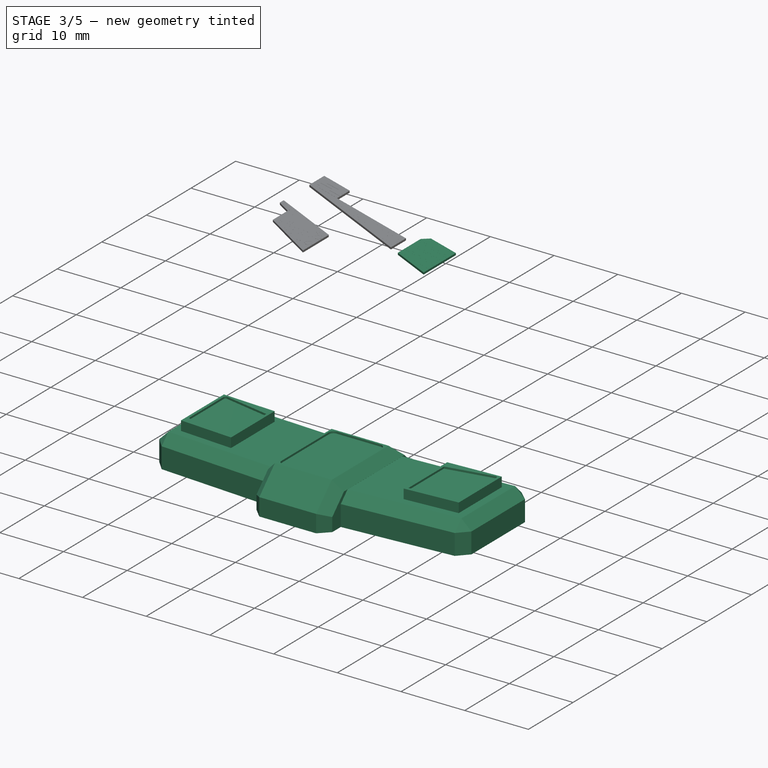
[diagram: stage 3 of 5 — iso view after this stage's code; geometry added in this stage tinted green]
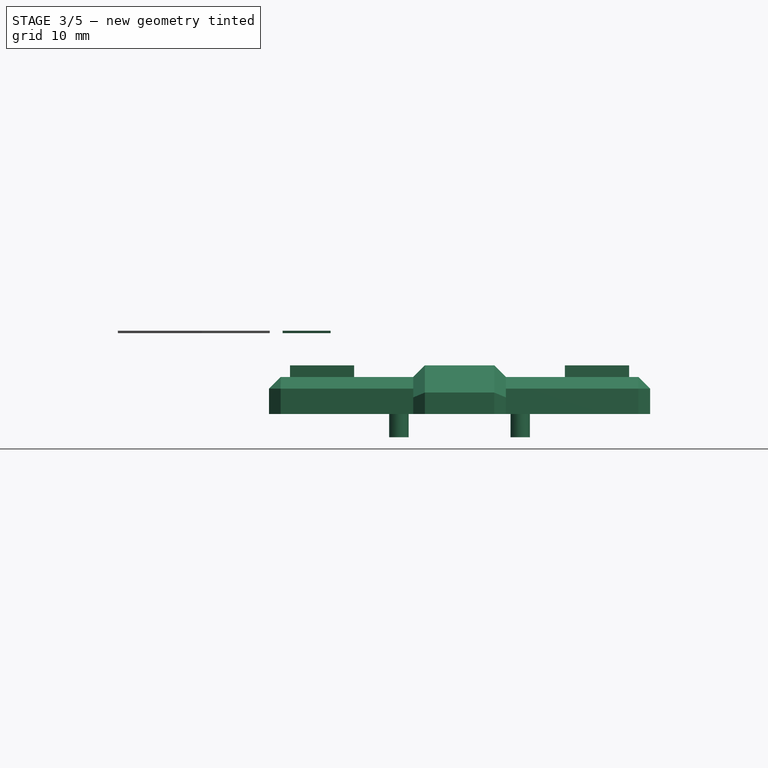
[diagram: stage 3 of 5 — front view after this stage's code; geometry added in this stage tinted green]
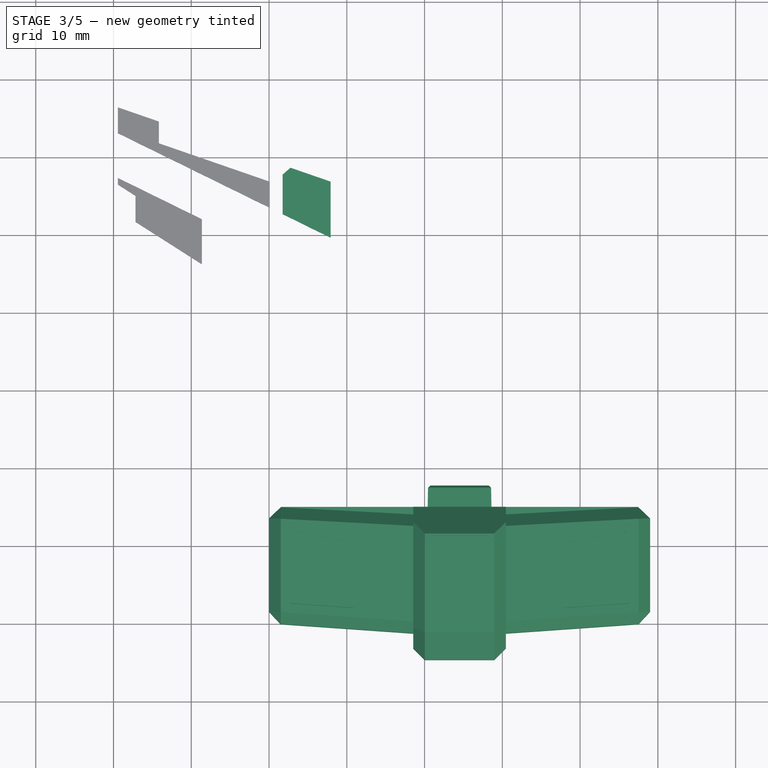
[diagram: stage 3 of 5 — top view after this stage's code; geometry added in this stage tinted green]
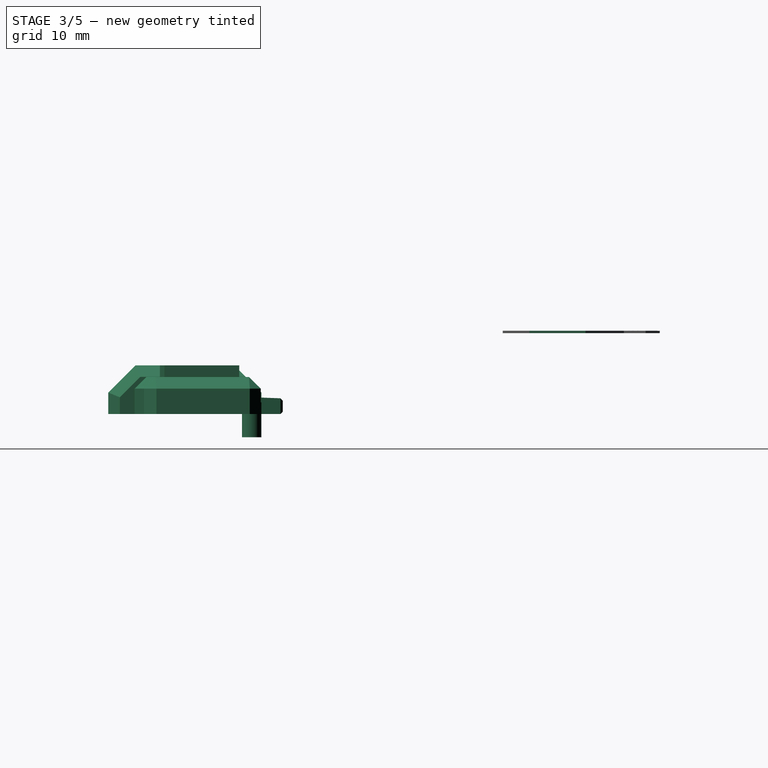
[diagram: stage 3 of 5 — right view after this stage's code; geometry added in this stage tinted green]
FEATURE [Part::Feature] Part__Feature  label="Waist"
  shape: bbox 49 x 22.45 x 9.25 mm, 83 faces (baked)
FEATURE [Image::ImagePlane] Sticker1  label="Sticker1_Base"
  Placement = pos=(24.5,5.1,0) rot=(0,0,1;0rad)
  XSize = 8.7
  YSize = 12.5858
FEATURE [Image::ImagePlane] Sticker2  label="Sticker2_Base"
  Placement = pos=(6.85,7,0) rot=(0,0,1;0rad)
  XSize = 8.7
  YSize = 10.416
FEATURE [PartDesign::FeatureBase] BaseFeature
  BaseFeature = -> Part__Feature
  Suppressed = false
FEATURE [Sketcher::SketchObject] Sketch
  ArcFitTolerance = 1e-06
  AttachmentSupport = -> [BaseFeature]
  ExternalGeometry = -> [BaseFeature]
  FullyConstrained = true
  MakeInternals = false
  MapMode = 5
  Placement = pos=(0,0,6.25) rot=(0,0,1;0rad)
  sketch-geometry (32):
    g0: LineSegment StartX=20.34 StartY=10.45 StartZ=0 EndX=20.34 EndY=-0.15 EndZ=0
    g1: LineSegment StartX=21.09 StartY=-0.9 StartZ=0 EndX=27.91 EndY=-0.9 EndZ=0
    g2: LineSegment StartX=28.66 StartY=-0.15 StartZ=0 EndX=28.66 EndY=10.45 EndZ=0
    g3: LineSegment StartX=27.91 StartY=11.2 StartZ=0 EndX=21.09 EndY=11.2 EndZ=0
    g4: ArcOfCircle CenterX=27.91 CenterY=-0.15 CenterZ=0 NormalX=0 NormalY=0 NormalZ=1 AngleXU=0 Radius=0.75 StartAngle=4.71239 EndAngle=6.28319
    g5: GeomPoint [constr] X=28.66 Y=-0.9 Z=0
    g6: ArcOfCircle CenterX=21.09 CenterY=-0.15 CenterZ=0 NormalX=0 NormalY=0 NormalZ=1 AngleXU=0 Radius=0.75 StartAngle=3.14159 EndAngle=4.71239
    g7: GeomPoint [constr] X=20.34 Y=-0.9 Z=0
    g8: ArcOfCircle CenterX=21.09 CenterY=10.45 CenterZ=0 NormalX=0 NormalY=0 NormalZ=1 AngleXU=0 Radius=0.75 StartAngle=1.5708 EndAngle=3.14159
    g9: GeomPoint [constr] X=20.34 Y=11.2 Z=0
    g10: ArcOfCircle CenterX=27.91 CenterY=10.45 CenterZ=0 NormalX=0 NormalY=0 NormalZ=1 AngleXU=0 Radius=0.75 StartAngle=4e-16 EndAngle=1.5708
    g11: GeomPoint [constr] X=28.66 Y=11.2 Z=0
    g12: LineSegment StartX=3.1 StartY=11.4951 StartZ=0 EndX=3.1 EndY=4.00981 EndZ=0
    g13: LineSegment StartX=3.51318 StartY=3.5174 StartZ=0 EndX=10.55 EndY=2.41924 EndZ=0
    g14: LineSegment StartX=10.55 StartY=2.41924 StartZ=0 EndX=10.55 EndY=10.4058 EndZ=0
    g15: LineSegment StartX=10.55 StartY=10.4058 StartZ=0 EndX=3.45209 EndY=11.7905 EndZ=0
    g16: ArcOfCircle CenterX=3.4 CenterY=11.4951 CenterZ=0 NormalX=0 NormalY=0 NormalZ=1 AngleXU=0 Radius=0.3 StartAngle=1.39626 EndAngle=3.14159
    g17: ArcOfCircle CenterX=3.6 CenterY=4.00981 CenterZ=0 NormalX=0 NormalY=0 NormalZ=1 AngleXU=0 Radius=0.5 StartAngle=3.14159 EndAngle=4.53786
    g18: LineSegment [constr] StartX=3.6 StartY=4.00981 StartZ=0 EndX=3.1 EndY=4.00981 EndZ=0
    g19: LineSegment [constr] StartX=3.1 StartY=11.4951 StartZ=0 EndX=3.4 EndY=11.4951 EndZ=0
    g20: LineSegment [constr] StartX=3.4 StartY=11.4951 StartZ=0 EndX=3.45209 EndY=11.7905 EndZ=0
    g21: LineSegment [constr] StartX=3.6 StartY=4.00981 StartZ=0 EndX=3.51318 EndY=3.5174 EndZ=0
    g22: LineSegment StartX=38.45 StartY=10.4058 StartZ=0 EndX=45.5479 EndY=11.7905 EndZ=0
    g23: LineSegment StartX=45.9 StartY=11.4951 StartZ=0 EndX=45.9 EndY=4.00981 EndZ=0
    g24: LineSegment StartX=45.4868 StartY=3.5174 StartZ=0 EndX=38.45 EndY=2.41924 EndZ=0
    g25: LineSegment StartX=38.45 StartY=2.41924 StartZ=0 EndX=38.45 EndY=10.4058 EndZ=0
    g26: ArcOfCircle CenterX=45.6 CenterY=11.4951 CenterZ=0 NormalX=0 NormalY=0 NormalZ=1 AngleXU=0 Radius=0.3 StartAngle=1.4e-15 EndAngle=1.74533
    g27: ArcOfCircle CenterX=45.4 CenterY=4.00981 CenterZ=0 NormalX=0 NormalY=0 NormalZ=1 AngleXU=0 Radius=0.5 StartAngle=4.88692 EndAngle=6.28319
    g28: LineSegment [constr] StartX=45.4 StartY=4.00981 StartZ=0 EndX=45.9 EndY=4.00981 EndZ=0
    g29: LineSegment [constr] StartX=45.4 StartY=4.00981 StartZ=0 EndX=45.4868 EndY=3.5174 EndZ=0
    g30: LineSegment [constr] StartX=45.9 StartY=11.4951 StartZ=0 EndX=45.6 EndY=11.4951 EndZ=0
    g31: LineSegment [constr] StartX=45.6 StartY=11.4951 StartZ=0 EndX=45.5479 EndY=11.7905 EndZ=0
  constraints (84):
    c: Vertical(g0)
    c: Vertical(g2)
    c: Horizontal(g1)
    c: Horizontal(g3)
    c: PointOnObject(g5,g1)
    c: PointOnObject(g5,g2)
    c: Tangent(g1,g4) = -1.5708
    c: Tangent(g2,g4) = -1.5708
    c: PointOnObject(g7,g0)
    c: PointOnObject(g7,g1)
    c: Tangent(g0,g6) = -1.5708
    c: Tangent(g1,g6) = -1.5708
    c: PointOnObject(g9,g0)
    c: PointOnObject(g9,g3)
    c: Tangent(g0,g8) = -1.5708
    c: Tangent(g3,g8) = -1.5708
    c: PointOnObject(g11,g2)
    c: PointOnObject(g11,g3)
    c: Tangent(g2,g10) = -1.5708
    c: Tangent(g3,g10) = -1.5708
    c: DistanceY(g3,g-8) = 0.3
    c: DistanceY(g-10,g1) = 0.3
    c: DistanceX(g-10,g0) = 0.3
    c: DistanceX(g2,g-10) = 0.3
    c: Radius(g4) = 0.75
    c: Radius(g6) = 0.75
    c: Radius(g8) = 0.75
    c: Radius(g10) = 0.75
    c: Vertical(g12)
    c: Coincident(g14,g13)
    c: Vertical(g14)
    c: Coincident(g15,g14)
    c: Coincident(g16,g15)
    c: Coincident(g16,g12)
    c: Coincident(g17,g13)
    c: Coincident(g17,g12)
    c: Coincident(g18,g17)
    c: Coincident(g18,g12)
    c: Coincident(g19,g12)
    c: Coincident(g19,g16)
    c: Horizontal(g19)
    c: Horizontal(g18)
    c: DistanceX(g-6,g12) = 0.4
    c: DistanceX(g13,g-6) = 0.4
    c: Coincident(g20,g16)
    c: Coincident(g20,g15)
    c: Angle(g20,g19) = 1.74533
    c: Coincident(g21,g17)
    c: Coincident(g21,g13)
    c: Angle(g18,g21) = 1.39626
    c: DistanceY(g-6,g13) = 0.48
    c: DistanceY(g14,g-4) = 1.3
    c: Radius(g16) = 0.3
    c: Radius(g17) = 0.5
    c: DistanceY(g-6,g13) = 1
    c: DistanceY(g15,g-5) = 0.36
    c: Vertical(g23)
    c: Coincident(g25,g24)
    c: Coincident(g25,g22)
    c: Vertical(g25)
    c: Coincident(g26,g22)
    c: Coincident(g26,g23)
    c: Coincident(g27,g23)
    c: Coincident(g27,g24)
    c: Coincident(g28,g27)
    c: Coincident(g28,g23)
    c: Coincident(g29,g27)
    c: Coincident(g29,g24)
    c: Coincident(g30,g23)
    c: Coincident(g30,g26)
    c: Coincident(g31,g26)
    c: Coincident(g31,g22)
    c: Horizontal(g30)
    c: Horizontal(g28)
    c: Radius(g26) = 0.3
    c: Radius(g27) = 0.5
    c: Angle(g30,g31) = 1.74533
    c: Angle(g29,g28) = 1.39626
    c: DistanceY(g22,g-12) = 1.3
    c: DistanceY(g-13,g24) = 0.48
    c: DistanceX(g-13,g24) = 0.4
    c: DistanceX(g23,g-14) = 0.4
    c: DistanceY(g22,g-14) = 0.36
    c: DistanceY(g-14,g24) = 1
FEATURE [PartDesign::Pocket] Pocket
  BaseFeature = -> BaseFeature
  Direction = (0,0,-1)
  Length = 0.3
  Length2 = 5
  Profile = -> Sketch
  ReferenceAxis = -> Sketch [N_Axis]
  Refine = true
  Suppressed = false
  Type = 0
FEATURE [PartDesign::Body] Body003  label="Sticker2"
  AllowCompound = false
  Group = -> [Binder001,Sketch007,Pad001,Sketch008,Pocket007]
  Origin = -> Origin003
  Tip = -> Pocket007
FEATURE [PartDesign::SubShapeBinder] Binder002
  BindCopyOnChange = 0
  BindMode = 0
  ClaimChildren = false
  Context = -> Body004 [Binder002.]
  Fuse = false
  MakeFace = true
  OffsetFill = false
  OffsetIntersection = false
  OffsetJoinType = 0
  OffsetOpenResult = false
  PartialLoad = false
  Refine = true
  Relative = true
  Support = -> [Body001[Pocket001.Face580]]
  _Version = 2
FEATURE [Sketcher::SketchObject] Sketch009
  ArcFitTolerance = 1e-06
  AttachmentSupport = -> [Binder002]
  ExternalGeometry = -> [Binder002]
  FullyConstrained = true
  MakeInternals = false
  MapMode = 5
  Placement = pos=(0,0,10.4) rot=(0,0,1;0rad)
  sketch-geometry (8):
    g0: LineSegment StartX=1.7524 StartY=57.5909 StartZ=0 EndX=1.7524 EndY=52.4812 EndZ=0
    g1: LineSegment StartX=1.7524 StartY=52.4812 StartZ=0 EndX=7.92 EndY=49.4511 EndZ=0
    g2: LineSegment StartX=7.92 StartY=49.4511 StartZ=0 EndX=7.92 EndY=56.675 EndZ=0
    g3: LineSegment StartX=7.92 StartY=56.675 StartZ=0 EndX=2.75781 EndY=58.4619 EndZ=0
    g4: LineSegment StartX=2.75781 StartY=58.4619 StartZ=0 EndX=1.7524 EndY=57.5909 EndZ=0
    g5: LineSegment [constr] StartX=7.27238 StartY=49.7693 StartZ=0 EndX=7.2371 EndY=49.6975 EndZ=0
    g6: LineSegment [constr] StartX=6.80205 StartY=57.062 StartZ=0 EndX=6.82822 EndY=57.1376 EndZ=0
    g7: LineSegment [constr] StartX=2.46773 StartY=58.2106 StartZ=0 EndX=2.41534 EndY=58.2711 EndZ=0
  constraints (27):
    c: Vertical(g0)
    c: Coincident(g1,g0)
    c: Coincident(g2,g1)
    c: Vertical(g2)
    c: Coincident(g3,g2)
    c: Coincident(g4,g3)
    c: Coincident(g4,g0)
    c: Parallel(g-4,g3)
    c: Parallel(g4,g-3)
    c: Parallel(g1,g-6)
    c: DistanceX(g-7,g0) = 0.08
    c: DistanceX(g1,g-6) = 0.08
    c: PointOnObject(g5,g1)
    c: PointOnObject(g5,g-6)
    c: PointOnObject(g6,g3)
    c: PointOnObject(g6,g-4)
    c: PointOnObject(g7,g4)
    c: PointOnObject(g7,g-3)
    c: Perpendicular(g7,g-3)
    c: Perpendicular(g6,g-4)
    c: Perpendicular(g-6,g5)
    c: Distance(g5,g-6) = 0.85
    c: Distance(g5) = 0.08
    c: Distance(g7,g-4) = 0.43
    c: Distance(g7) = 0.08
    c: Distance(g6,g-5) = 1.24
    c: Distance(g6) = 0.08
FEATURE [PartDesign::Pad] Pad002
  Direction = (0,0,1)
  Length = 0.3
  Length2 = 10
  Profile = -> Sketch009
  ReferenceAxis = -> Sketch009 [N_Axis]
  Refine = true
  Suppressed = false
  Type = 0
FEATURE [Sketcher::SketchObject] Sketch010
  ArcFitTolerance = 1e-06
  AttachmentSupport = -> [Pad002]
  ExternalGeometry = -> [Pad002]
  FullyConstrained = false
  MakeInternals = false
  MapMode = 5
  Placement = pos=(0,0,10.7) rot=(0,0,1;0rad)
  sketch-geometry (48):
    g0: ArcOfCircle CenterX=2.42793 CenterY=58.1761 CenterZ=0 NormalX=0 NormalY=0 NormalZ=-1 AngleXU=-2.80834 Radius=0.00140267 StartAngle=1.5708 EndAngle=4.71239
    g1: LineSegment StartX=2.42839 StartY=58.1775 StartZ=0 EndX=4.25908 EndY=57.5437 EndZ=0
    g2: LineSegment StartX=4.25908 StartY=57.5437 StartZ=0 EndX=7.92046 EndY=56.2763 EndZ=0
    g3: ArcOfCircle CenterX=7.92 CenterY=56.275 CenterZ=0 NormalX=0 NormalY=0 NormalZ=-1 AngleXU=0.333257 Radius=0.00140267 StartAngle=1.5708 EndAngle=4.71239
    g4: LineSegment StartX=4.25816 StartY=57.5411 StartZ=0 EndX=7.91954 EndY=56.2736 EndZ=0
    g5: LineSegment StartX=2.42747 StartY=58.1748 StartZ=0 EndX=4.25816 EndY=57.5411 EndZ=0
    g6: ArcOfCircle CenterX=7.92 CenterY=50.675 CenterZ=0 NormalX=0 NormalY=0 NormalZ=-1 AngleXU=0.333257 Radius=0.00140267 StartAngle=1.5708 EndAngle=4.71239
    g7: LineSegment StartX=7.91954 StartY=50.6736 StartZ=0 EndX=5.86367 EndY=51.3853 EndZ=0
    g8: LineSegment StartX=5.86367 StartY=51.3853 StartZ=0 EndX=1.75194 EndY=52.8087 EndZ=0
    g9: ArcOfCircle CenterX=1.7524 CenterY=52.81 CenterZ=0 NormalX=0 NormalY=0 NormalZ=-1 AngleXU=-2.80834 Radius=0.00140267 StartAngle=1.5708 EndAngle=4.71239
    g10: LineSegment StartX=5.86459 StartY=51.388 StartZ=0 EndX=1.75286 EndY=52.8113 EndZ=0
    g11: LineSegment StartX=7.92046 StartY=50.6763 StartZ=0 EndX=5.86459 EndY=51.388 EndZ=0
    g12: ArcOfCircle CenterX=1.7524 CenterY=53.91 CenterZ=0 NormalX=0 NormalY=0 NormalZ=-1 AngleXU=-2.80834 Radius=0.00140267 StartAngle=1.5708 EndAngle=4.71239
    g13: LineSegment StartX=1.75286 StartY=53.9113 StartZ=0 EndX=3.80873 EndY=53.1996 EndZ=0
    g14: LineSegment StartX=3.80873 StartY=53.1996 StartZ=0 EndX=7.92046 EndY=51.7763 EndZ=0
    g15: ArcOfCircle CenterX=7.92 CenterY=51.775 CenterZ=0 NormalX=0 NormalY=0 NormalZ=-1 AngleXU=0.333257 Radius=0.00140267 StartAngle=1.5708 EndAngle=4.71239
    g16: LineSegment StartX=3.80781 StartY=53.197 StartZ=0 EndX=7.91954 EndY=51.7736 EndZ=0
    g17: LineSegment StartX=1.75194 StartY=53.9087 StartZ=0 EndX=3.80781 EndY=53.197 EndZ=0
    g18: ArcOfCircle CenterX=1.7524 CenterY=54.31 CenterZ=0 NormalX=0 NormalY=0 NormalZ=-1 AngleXU=-2.80834 Radius=0.00140267 StartAngle=1.5708 EndAngle=4.71239
    g19: LineSegment StartX=1.75286 StartY=54.3113 StartZ=0 EndX=3.80873 EndY=53.5996 EndZ=0
    g20: LineSegment StartX=3.80873 StartY=53.5996 StartZ=0 EndX=7.92046 EndY=52.1763 EndZ=0
    g21: ArcOfCircle CenterX=7.92 CenterY=52.175 CenterZ=0 NormalX=0 NormalY=0 NormalZ=-1 AngleXU=0.333257 Radius=0.00140267 StartAngle=1.5708 EndAngle=4.71239
    g22: LineSegment StartX=3.80781 StartY=53.597 StartZ=0 EndX=7.91954 EndY=52.1736 EndZ=0
    g23: LineSegment StartX=1.75194 StartY=54.3087 StartZ=0 EndX=3.80781 EndY=53.597 EndZ=0
    g24: ArcOfCircle CenterX=1.7524 CenterY=55.41 CenterZ=0 NormalX=0 NormalY=0 NormalZ=-1 AngleXU=-2.80834 Radius=0.00140267 StartAngle=1.5708 EndAngle=4.71239
    g25: LineSegment StartX=1.75286 StartY=55.4113 StartZ=0 EndX=3.80873 EndY=54.6996 EndZ=0
    g26: LineSegment StartX=3.80873 StartY=54.6996 StartZ=0 EndX=7.92046 EndY=53.2763 EndZ=0
    g27: ArcOfCircle CenterX=7.92 CenterY=53.275 CenterZ=0 NormalX=0 NormalY=0 NormalZ=-1 AngleXU=0.333257 Radius=0.00140267 StartAngle=1.5708 EndAngle=4.71239
    g28: LineSegment StartX=3.80781 StartY=54.697 StartZ=0 EndX=7.91954 EndY=53.2736 EndZ=0
    g29: LineSegment StartX=1.75194 StartY=55.4087 StartZ=0 EndX=3.80781 EndY=54.697 EndZ=0
    g30: ArcOfCircle CenterX=1.7524 CenterY=55.81 CenterZ=0 NormalX=0 NormalY=0 NormalZ=-1 AngleXU=-2.80834 Radius=0.00140267 StartAngle=1.5708 EndAngle=4.71239
    g31: LineSegment StartX=1.75286 StartY=55.8113 StartZ=0 EndX=3.80873 EndY=55.0996 EndZ=0
    g32: LineSegment StartX=3.80873 StartY=55.0996 StartZ=0 EndX=7.92046 EndY=53.6763 EndZ=0
    g33: ArcOfCircle CenterX=7.92 CenterY=53.675 CenterZ=0 NormalX=0 NormalY=0 NormalZ=-1 AngleXU=0.333257 Radius=0.00140267 StartAngle=1.5708 EndAngle=4.71239
    g34: LineSegment StartX=3.80781 StartY=55.097 StartZ=0 EndX=7.91954 EndY=53.6736 EndZ=0
    g35: LineSegment StartX=1.75194 StartY=55.8087 StartZ=0 EndX=3.80781 EndY=55.097 EndZ=0
    g36: ArcOfCircle CenterX=1.7524 CenterY=56.91 CenterZ=0 NormalX=0 NormalY=0 NormalZ=-1 AngleXU=-2.80834 Radius=0.00140267 StartAngle=1.5708 EndAngle=4.71239
    g37: LineSegment StartX=1.75286 StartY=56.9113 StartZ=0 EndX=3.80873 EndY=56.1996 EndZ=0
    g38: LineSegment StartX=3.80873 StartY=56.1996 StartZ=0 EndX=7.92046 EndY=54.7763 EndZ=0
    g39: ArcOfCircle CenterX=7.92 CenterY=54.775 CenterZ=0 NormalX=0 NormalY=0 NormalZ=-1 AngleXU=0.333257 Radius=0.00140267 StartAngle=1.5708 EndAngle=4.71239
    g40: LineSegment StartX=3.80781 StartY=56.197 StartZ=0 EndX=7.91954 EndY=54.7736 EndZ=0
    g41: LineSegment StartX=1.75194 StartY=56.9087 StartZ=0 EndX=3.80781 EndY=56.197 EndZ=0
    g42: ArcOfCircle CenterX=1.7524 CenterY=57.31 CenterZ=0 NormalX=0 NormalY=0 NormalZ=-1 AngleXU=-2.80834 Radius=0.00140267 StartAngle=1.5708 EndAngle=4.71239
    g43: LineSegment StartX=1.75286 StartY=57.3113 StartZ=0 EndX=3.80873 EndY=56.5996 EndZ=0
    g44: LineSegment StartX=3.80873 StartY=56.5996 StartZ=0 EndX=7.92046 EndY=55.1763 EndZ=0
    g45: ArcOfCircle CenterX=7.92 CenterY=55.175 CenterZ=0 NormalX=0 NormalY=0 NormalZ=-1 AngleXU=0.333257 Radius=0.00140267 StartAngle=1.5708 EndAngle=4.71239
    g46: LineSegment StartX=3.80781 StartY=56.597 StartZ=0 EndX=7.91954 EndY=55.1736 EndZ=0
    g47: LineSegment StartX=1.75194 StartY=57.3087 StartZ=0 EndX=3.80781 EndY=56.597 EndZ=0
  constraints (48):
    c: Tangent(g0,g1) = 1.5708
    c: Tangent(g0,g5) = -1.5708
    c: Coincident(g1,g2)
    c: Tangent(g2,g3) = 1.5708
    c: Tangent(g3,g4) = -1.5708
    c: Coincident(g4,g5)
    c: Tangent(g6,g7) = 1.5708
    c: Tangent(g6,g11) = -1.5708
    c: Coincident(g7,g8)
    c: Tangent(g8,g9) = 1.5708
    c: Tangent(g9,g10) = -1.5708
    c: Coincident(g10,g11)
    c: Tangent(g12,g13) = 1.5708
    c: Tangent(g12,g17) = -1.5708
    c: Coincident(g13,g14)
    c: Tangent(g14,g15) = 1.5708
    c: Tangent(g15,g16) = -1.5708
    c: Coincident(g16,g17)
    c: Tangent(g18,g19) = 1.5708
    c: Tangent(g18,g23) = -1.5708
    c: Coincident(g19,g20)
    c: Tangent(g20,g21) = 1.5708
    c: Tangent(g21,g22) = -1.5708
    c: Coincident(g22,g23)
    c: Tangent(g24,g25) = 1.5708
    c: Tangent(g24,g29) = -1.5708
    c: Coincident(g25,g26)
    c: Tangent(g26,g27) = 1.5708
    c: Tangent(g27,g28) = -1.5708
    c: Coincident(g28,g29)
    c: Tangent(g30,g31) = 1.5708
    c: Tangent(g30,g35) = -1.5708
    c: Coincident(g31,g32)
    c: Tangent(g32,g33) = 1.5708
    c: Tangent(g33,g34) = -1.5708
    c: Coincident(g34,g35)
    c: Tangent(g36,g37) = 1.5708
    c: Tangent(g36,g41) = -1.5708
    c: Coincident(g37,g38)
    c: Tangent(g38,g39) = 1.5708
    c: Tangent(g39,g40) = -1.5708
    c: Coincident(g40,g41)
    c: Tangent(g42,g43) = 1.5708
    c: Tangent(g42,g47) = -1.5708
    c: Coincident(g43,g44)
    c: Tangent(g44,g45) = 1.5708
    c: Tangent(g45,g46) = -1.5708
    c: Coincident(g46,g47)
FEATURE [PartDesign::Pocket] Pocket008
  BaseFeature = -> Pad002
  Direction = (0,0,-1)
  Length = 0.01
  Length2 = 5
  Profile = -> Sketch010
  ReferenceAxis = -> Sketch010 [N_Axis]
  Refine = true
  Suppressed = false
  Type = 0
FEATURE [PartDesign::Pocket] Pocket009
  BaseFeature = -> Pocket008
  Direction = (0,0,-1)
  Length = 0.01
  Length2 = 5
  Profile = -> Sketch010
  ReferenceAxis = -> Sketch010 [N_Axis]
  Refine = true
  Suppressed = false
  Type = 0
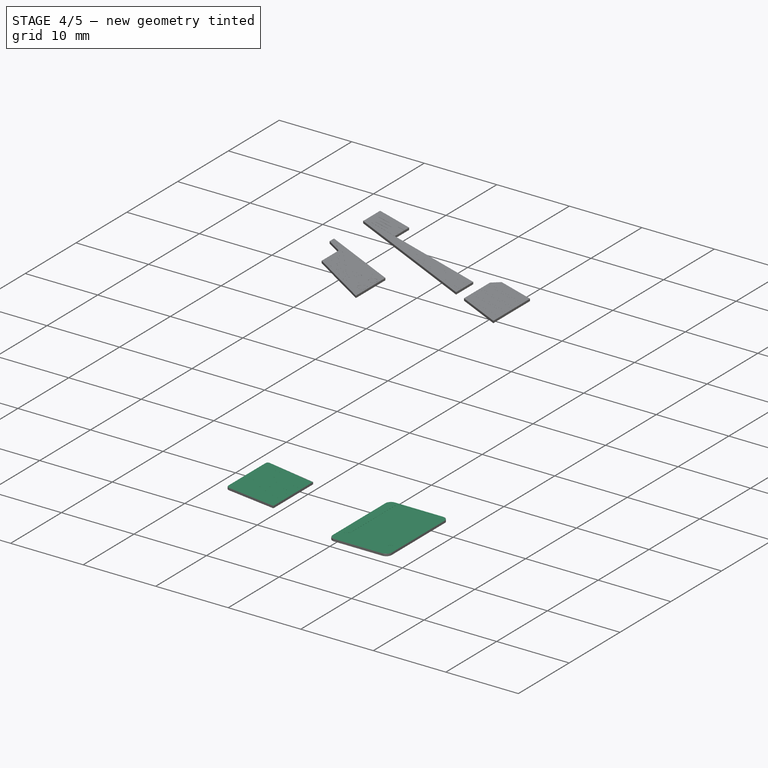
[diagram: stage 4 of 5 — iso view after this stage's code; geometry added in this stage tinted green]
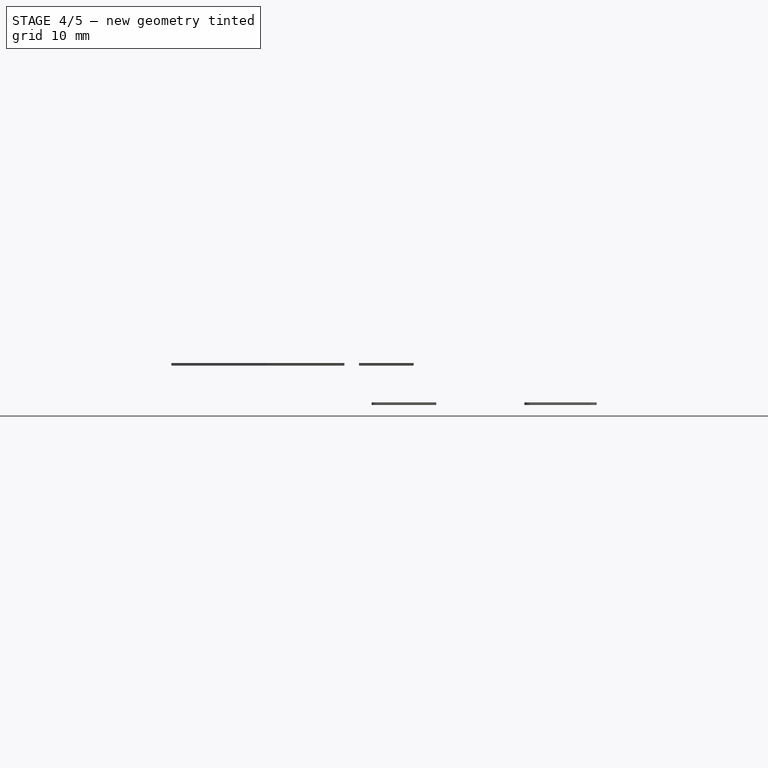
[diagram: stage 4 of 5 — front view after this stage's code; geometry added in this stage tinted green]
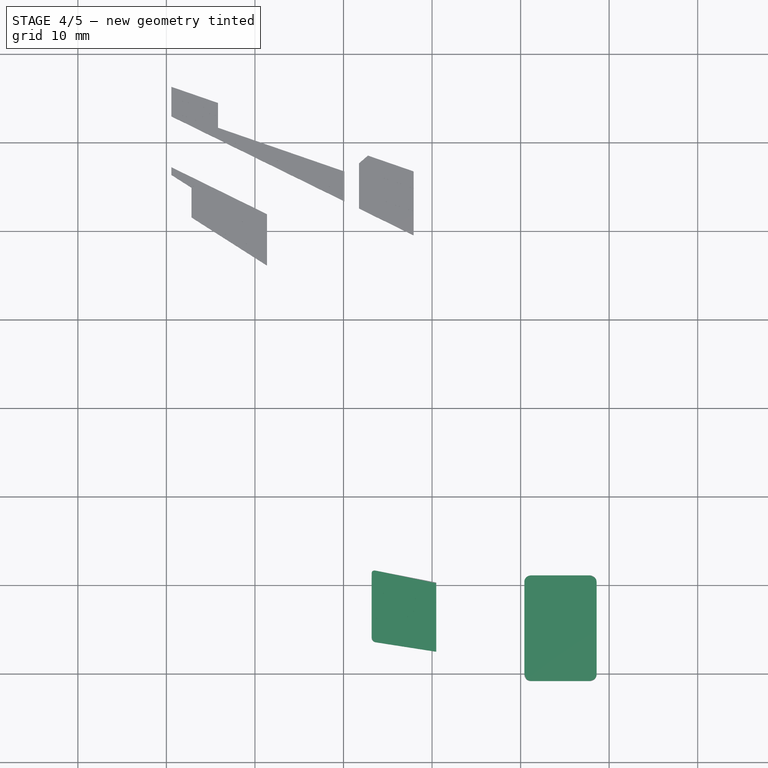
[diagram: stage 4 of 5 — top view after this stage's code; geometry added in this stage tinted green]
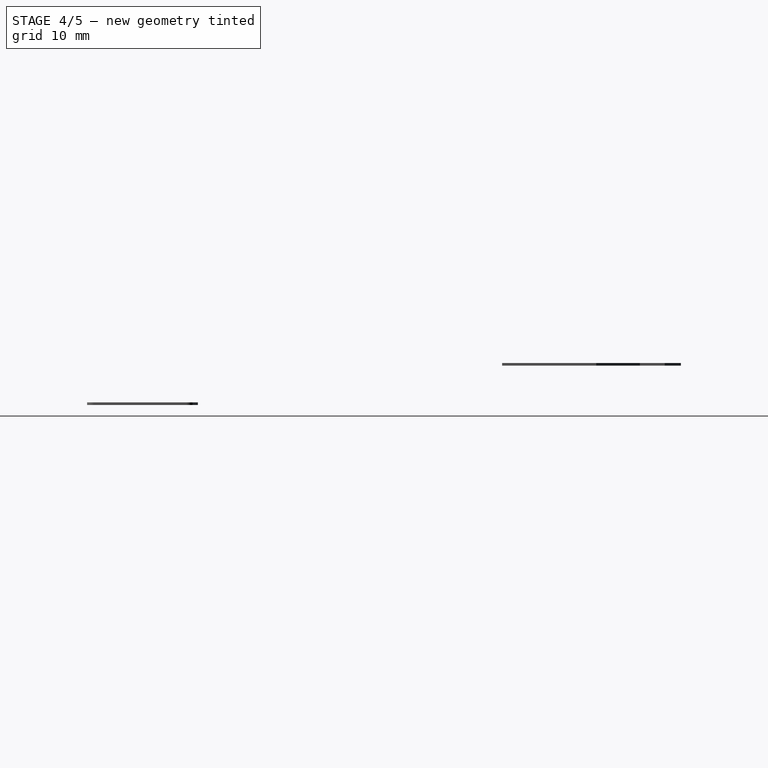
[diagram: stage 4 of 5 — right view after this stage's code; geometry added in this stage tinted green]
FEATURE [PartDesign::Body] Body001  label="Chestplate_Stickered"
  AllowCompound = false
  BaseFeature = -> Part__Feature001
  Group = -> [BaseFeature001,Pocket001]
  Origin = -> Origin001
  Placement = pos=(16,37,15) rot=(0,0,1;0rad)
  Tip = -> Pocket001
FEATURE [PartDesign::SubShapeBinder] Binder
  BindCopyOnChange = 0
  BindMode = 2
  ClaimChildren = false
  Context = -> Body002 [Binder.]
  Fuse = false
  MakeFace = true
  OffsetFill = false
  OffsetIntersection = false
  OffsetJoinType = 0
  OffsetOpenResult = false
  PartialLoad = false
  Refine = true
  Relative = true
  _Version = 2
FEATURE [Sketcher::SketchObject] Sketch001
  ArcFitTolerance = 1e-06
  AttachmentSupport = -> [Binder]
  ExternalGeometry = -> [Binder]
  FullyConstrained = true
  MakeInternals = false
  MapMode = 5
  Placement = pos=(0,0,5.95) rot=(0,0,1;0rad)
  sketch-geometry (20):
    g0: LineSegment StartX=20.42 StartY=10.37 StartZ=0 EndX=20.42 EndY=-0.07 EndZ=0
    g1: LineSegment StartX=21.17 StartY=-0.82 StartZ=0 EndX=27.83 EndY=-0.82 EndZ=0
    g2: LineSegment StartX=28.58 StartY=-0.07 StartZ=0 EndX=28.58 EndY=10.37 EndZ=0
    g3: LineSegment StartX=27.83 StartY=11.12 StartZ=0 EndX=21.17 EndY=11.12 EndZ=0
    g4: ArcOfCircle CenterX=27.83 CenterY=-0.07 CenterZ=0 NormalX=0 NormalY=0 NormalZ=1 AngleXU=0 Radius=0.75 StartAngle=4.71239 EndAngle=6.28319
    g5: GeomPoint [constr] X=28.58 Y=-0.82 Z=0
    g6: ArcOfCircle CenterX=21.17 CenterY=-0.07 CenterZ=0 NormalX=0 NormalY=0 NormalZ=1 AngleXU=0 Radius=0.75 StartAngle=3.14159 EndAngle=4.71239
    g7: GeomPoint [constr] X=20.42 Y=-0.82 Z=0
    g8: ArcOfCircle CenterX=21.17 CenterY=10.37 CenterZ=0 NormalX=0 NormalY=0 NormalZ=1 AngleXU=0 Radius=0.75 StartAngle=1.5708 EndAngle=3.14159
    g9: GeomPoint [constr] X=20.42 Y=11.12 Z=0
    g10: ArcOfCircle CenterX=27.83 CenterY=10.37 CenterZ=0 NormalX=0 NormalY=0 NormalZ=1 AngleXU=0 Radius=0.75 StartAngle=-5.51e-14 EndAngle=1.5708
    g11: GeomPoint [constr] X=28.58 Y=11.12 Z=0
    g12: LineSegment [constr] StartX=27.83 StartY=11.12 StartZ=0 EndX=27.83 EndY=10.37 EndZ=0
    g13: LineSegment [constr] StartX=27.83 StartY=10.37 StartZ=0 EndX=28.58 EndY=10.37 EndZ=0
    g14: LineSegment [constr] StartX=21.17 StartY=11.12 StartZ=0 EndX=21.17 EndY=10.37 EndZ=0
    g15: LineSegment [constr] StartX=21.17 StartY=10.37 StartZ=0 EndX=20.42 EndY=10.37 EndZ=0
    g16: LineSegment [constr] StartX=21.17 StartY=-0.07 StartZ=0 EndX=21.17 EndY=-0.82 EndZ=0
    g17: LineSegment [constr] StartX=21.17 StartY=-0.07 StartZ=0 EndX=20.42 EndY=-0.07 EndZ=0
    g18: LineSegment [constr] StartX=28.58 StartY=-0.07 StartZ=0 EndX=27.83 EndY=-0.07 EndZ=0
    g19: LineSegment [constr] StartX=27.83 StartY=-0.07 StartZ=0 EndX=27.83 EndY=-0.82 EndZ=0
  constraints (45):
    c: Vertical(g0)
    c: Vertical(g2)
    c: Horizontal(g1)
    c: Horizontal(g3)
    c: PointOnObject(g5,g1)
    c: PointOnObject(g5,g2)
    c: Tangent(g1,g4) = -1.5708
    c: Tangent(g2,g4) = -1.5708
    c: PointOnObject(g7,g0)
    c: PointOnObject(g7,g1)
    c: Tangent(g0,g6) = -1.5708
    c: Tangent(g1,g6) = -1.5708
    c: PointOnObject(g9,g0)
    c: PointOnObject(g9,g3)
    c: Tangent(g0,g8) = -1.5708
    c: Tangent(g3,g8) = -1.5708
    c: PointOnObject(g11,g2)
    c: PointOnObject(g11,g3)
    c: Tangent(g2,g10) = -1.5708
    c: Tangent(g3,g10) = -1.5708
    c: Radius(g-10) = 0.75
    c: Radius(g6) = 0.75
    c: Radius(g4) = 0.75
    c: Radius(g8) = 0.75
    c: Radius(g10) = 0.75
    c: Coincident(g12,g3)
    c: Coincident(g12,g10)
    c: Coincident(g13,g10)
    c: Coincident(g13,g2)
    c: Coincident(g14,g3)
    c: Coincident(g14,g8)
    c: Coincident(g15,g8)
    c: Coincident(g15,g0)
    c: Coincident(g16,g6)
    c: Coincident(g16,g1)
    c: Coincident(g17,g6)
    c: Coincident(g17,g0)
    c: Coincident(g18,g2)
    c: Coincident(g18,g4)
    c: Coincident(g19,g4)
    c: Coincident(g19,g1)
    c: DistanceX(g-10,g0) = 0.08
    c: DistanceX(g2,g-8) = 0.08
    c: DistanceY(g-9,g1) = 0.08
    c: DistanceY(g3,g-4) = 0.08
FEATURE [PartDesign::Pad] Pad
  Direction = (0,0,1)
  Length = 0.3
  Length2 = 10
  Profile = -> Sketch001
  ReferenceAxis = -> Sketch001 [N_Axis]
  Refine = true
  Suppressed = false
  Type = 0
FEATURE [Sketcher::SketchObject] Sketch002
  ArcFitTolerance = 1e-06
  AttachmentSupport = -> [Pad]
  FullyConstrained = false
  MakeInternals = false
  MapMode = 5
  Placement = pos=(0,0,6.25) rot=(0,0,1;0rad)
  sketch-geometry (10):
    g0: Circle CenterX=21.4425 CenterY=1.27718 CenterZ=0 NormalX=0 NormalY=0 NormalZ=1 AngleXU=0 Radius=0.3
    g1: Circle CenterX=27.4783 CenterY=1.27058 CenterZ=0 NormalX=0 NormalY=0 NormalZ=1 AngleXU=0 Radius=0.3
    g2: LineSegment StartX=21.6922 StartY=10.8511 StartZ=0 EndX=21.6922 EndY=1.84652 EndZ=0
    g3: LineSegment StartX=22.1922 StartY=1.34652 StartZ=0 EndX=26.7325 EndY=1.34652 EndZ=0
    g4: LineSegment StartX=27.2325 StartY=1.84652 StartZ=0 EndX=27.2325 EndY=10.8511 EndZ=0
    g5: LineSegment StartX=27.2325 StartY=10.8511 StartZ=0 EndX=21.6922 EndY=10.8511 EndZ=0
    g6: ArcOfCircle CenterX=26.7325 CenterY=1.84652 CenterZ=0 NormalX=0 NormalY=0 NormalZ=1 AngleXU=0 Radius=0.5 StartAngle=4.71239 EndAngle=6.28319
    g7: GeomPoint [constr] X=27.2325 Y=1.34652 Z=0
    g8: ArcOfCircle CenterX=22.1922 CenterY=1.84652 CenterZ=0 NormalX=0 NormalY=0 NormalZ=1 AngleXU=0 Radius=0.5 StartAngle=3.14159 EndAngle=4.71239
    g9: GeomPoint [constr] X=21.6922 Y=1.34652 Z=0
  constraints (18):
    c: Coincident(g4,g5)
    c: Coincident(g5,g2)
    c: Vertical(g2)
    c: Vertical(g4)
    c: Horizontal(g3)
    c: Horizontal(g5)
    c: PointOnObject(g7,g3)
    c: PointOnObject(g7,g4)
    c: Tangent(g3,g6) = -1.5708
    c: Tangent(g4,g6) = -1.5708
    c: PointOnObject(g9,g2)
    c: PointOnObject(g9,g3)
    c: Tangent(g2,g8) = -1.5708
    c: Tangent(g3,g8) = -1.5708
    c: Radius(g8) = 0.5
    c: Radius(g6) = 0.5
    c: Radius(g1) = 0.3
    c: Radius(g0) = 0.3
FEATURE [PartDesign::Pocket] Pocket002
  BaseFeature = -> Pad
  Direction = (0,0,-1)
  Length = 0.01
  Length2 = 5
  Profile = -> Sketch002
  ReferenceAxis = -> Sketch002 [N_Axis]
  Refine = true
  Suppressed = false
  Type = 0
FEATURE [PartDesign::Body] Body002  label="Sticker1"
  AllowCompound = false
  Group = -> [Binder,Sketch001,Pad,Sketch002,Pocket002,Sketch003,Pocket003,Sketch004,Pocket004,Sketch005,Pocket005,Sketch006,Pocket006]
  Origin = -> Origin002
  Tip = -> Pocket006
FEATURE [PartDesign::SubShapeBinder] Binder001
  BindCopyOnChange = 0
  BindMode = 0
  ClaimChildren = false
  Context = -> Body003 [Binder001.]
  Fuse = false
  MakeFace = true
  OffsetFill = false
  OffsetIntersection = false
  OffsetJoinType = 0
  OffsetOpenResult = false
  PartialLoad = false
  Refine = true
  Relative = true
  Support = -> [Body[Pocket.Face106]]
  _Version = 2
FEATURE [Sketcher::SketchObject] Sketch007
  ArcFitTolerance = 1e-06
  AttachmentSupport = -> [Binder001]
  ExternalGeometry = -> [Binder001]
  FullyConstrained = false
  MakeInternals = false
  MapMode = 5
  Placement = pos=(0,0,5.95) rot=(0,0,1;0rad)
  sketch-geometry (8):
    g0: LineSegment StartX=10.47 StartY=10.3258 StartZ=0 EndX=10.47 EndY=2.49924 EndZ=0
    g1: LineSegment StartX=10.47 StartY=2.49924 StartZ=0 EndX=3.575 EndY=3.57527 EndZ=0
    g2: LineSegment StartX=10.47 StartY=10.3258 StartZ=0 EndX=3.53846 EndY=11.6781 EndZ=0
    g3: LineSegment StartX=3.18 StartY=11.3838 StartZ=0 EndX=3.18 EndY=4.06412 EndZ=0
    g4: ArcOfCircle CenterX=3.48 CenterY=11.3838 CenterZ=0 NormalX=0 NormalY=0 NormalZ=1 AngleXU=0 Radius=0.3 StartAngle=1.37467 EndAngle=3.14159
    g5: ArcOfCircle CenterX=3.68 CenterY=4.06412 CenterZ=0 NormalX=0 NormalY=0 NormalZ=1 AngleXU=0 Radius=0.5 StartAngle=3.14159 EndAngle=4.50081
    g6: LineSegment [constr] StartX=3.48 StartY=11.3838 StartZ=0 EndX=3.18 EndY=11.3838 EndZ=0
    g7: LineSegment [constr] StartX=3.18 StartY=4.06412 StartZ=0 EndX=3.68 EndY=4.06412 EndZ=0
  constraints (24):
    c: Vertical(g0)
    c: Coincident(g1,g0)
    c: Coincident(g2,g0)
    c: Vertical(g3)
    c: Coincident(g4,g2)
    c: Coincident(g4,g3)
    c: Coincident(g5,g1)
    c: Coincident(g5,g3)
    c: Parallel(g1,g-5)
    c: Parallel(g-3,g2)
    c: DistanceX(g0,g-6) = 0.08
    c: DistanceY(g0,g-6) = 0.08
    c: DistanceY(g-6,g0) = 0.08
    c: DistanceX(g-7,g3) = 0.08
    c: Coincident(g6,g4)
    c: Coincident(g6,g3)
    c: Horizontal(g6)
    c: Coincident(g7,g3)
    c: Coincident(g7,g5)
    c: Horizontal(g7)
    c: Radius(g-8) = 0.5
    c: Radius(g5) = 0.5
    c: Radius(g4) = 0.3
    c: Radius(g-7) = 0.3
FEATURE [PartDesign::Pad] Pad001
  Direction = (0,0,1)
  Length = 0.3
  Length2 = 10
  Profile = -> Sketch007
  ReferenceAxis = -> Sketch007 [N_Axis]
  Refine = true
  Suppressed = false
  Type = 0
FEATURE [Sketcher::SketchObject] Sketch008
  ArcFitTolerance = 1e-06
  AttachmentSupport = -> [Pad001]
  ExternalGeometry = -> [Pad001]
  FullyConstrained = false
  MakeInternals = false
  MapMode = 5
  Placement = pos=(0,0,6.25) rot=(0,0,1;0rad)
  sketch-geometry (48):
    g0: ArcOfCircle CenterX=3.18 CenterY=10.75 CenterZ=0 NormalX=0 NormalY=0 NormalZ=-1 AngleXU=-2.95574 Radius=0.000633944 StartAngle=1.5708 EndAngle=4.71239
    g1: LineSegment StartX=7.20352 StartY=9.99418 StartZ=0 EndX=3.18012 EndY=10.7507 EndZ=0
    g2: ArcOfCircle CenterX=7.2034 CenterY=9.99356 CenterZ=0 NormalX=0 NormalY=0 NormalZ=-1 AngleXU=0.185852 Radius=0.000633944 StartAngle=1.5708 EndAngle=2.32565
    g3: LineSegment StartX=7.72506 StartY=9.27931 StartZ=0 EndX=7.20391 EndY=9.99393 EndZ=0
    g4: LineSegment StartX=10.4701 StartY=8.83556 StartZ=0 EndX=7.72506 EndY=9.27931 EndZ=0
    g5: ArcOfCircle CenterX=10.47 CenterY=8.83493 CenterZ=0 NormalX=0 NormalY=0 NormalZ=-1 AngleXU=0.160267 Radius=0.000633944 StartAngle=1.5708 EndAngle=4.71239
    g6: LineSegment StartX=10.4699 StartY=8.83431 StartZ=0 EndX=7.7246 EndY=9.2781 EndZ=0
    g7: ArcOfCircle CenterX=7.7247 CenterY=9.27872 CenterZ=0 NormalX=0 NormalY=0 NormalZ=-1 AngleXU=-2.98133 Radius=0.000633944 StartAngle=1.5708 EndAngle=2.35123
    g8: LineSegment StartX=7.72419 StartY=9.27835 StartZ=0 EndX=7.20304 EndY=9.99298 EndZ=0
    g9: LineSegment StartX=7.20304 StartY=9.99298 StartZ=0 EndX=3.17988 EndY=10.7494 EndZ=0
    g10: LineSegment StartX=5.60989 StartY=8.92579 StartZ=0 EndX=10.4699 EndY=8.05579 EndZ=0
    g11: ArcOfCircle CenterX=10.47 CenterY=8.05642 CenterZ=0 NormalX=0 NormalY=0 NormalZ=-1 AngleXU=0.177135 Radius=0.000633944 StartAngle=1.5708 EndAngle=4.71239
    g12: LineSegment StartX=5.61011 StartY=8.92704 StartZ=0 EndX=10.4701 EndY=8.05704 EndZ=0
    g13: LineSegment StartX=3.18011 StartY=9.36203 StartZ=0 EndX=5.61011 EndY=8.92704 EndZ=0
    g14: ArcOfCircle CenterX=3.18 CenterY=9.36141 CenterZ=0 NormalX=0 NormalY=0 NormalZ=-1 AngleXU=-2.96446 Radius=0.000633944 StartAngle=1.5708 EndAngle=4.71239
    g15: LineSegment StartX=3.17989 StartY=9.36078 StartZ=0 EndX=5.60989 EndY=8.92579 EndZ=0
    g16: LineSegment StartX=5.60989 StartY=6.74167 StartZ=0 EndX=10.4699 EndY=5.8698 EndZ=0
    g17: ArcOfCircle CenterX=10.47 CenterY=5.87042 CenterZ=0 NormalX=0 NormalY=0 NormalZ=-1 AngleXU=0.17751 Radius=0.000633944 StartAngle=1.5708 EndAngle=4.71239
    g18: LineSegment StartX=5.61011 StartY=6.74292 StartZ=0 EndX=10.4701 EndY=5.87104 EndZ=0
    g19: LineSegment StartX=3.18011 StartY=7.17886 StartZ=0 EndX=5.61011 EndY=6.74292 EndZ=0
    g20: ArcOfCircle CenterX=3.18 CenterY=7.17823 CenterZ=0 NormalX=0 NormalY=0 NormalZ=-1 AngleXU=-2.96408 Radius=0.000633944 StartAngle=1.5708 EndAngle=4.71239
    g21: LineSegment StartX=3.17989 StartY=7.17761 StartZ=0 EndX=5.60989 EndY=6.74167 EndZ=0
    g22: ArcOfCircle CenterX=3.18 CenterY=6.39206 CenterZ=0 NormalX=0 NormalY=0 NormalZ=-1 AngleXU=-2.95543 Radius=0.000633944 StartAngle=1.5708 EndAngle=4.71239
    g23: LineSegment StartX=3.17988 StartY=6.39144 StartZ=0 EndX=7.19395 EndY=5.6354 EndZ=0
    g24: LineSegment StartX=7.19395 StartY=5.6354 StartZ=0 EndX=7.7352 EndY=4.92263 EndZ=0
    g25: ArcOfCircle CenterX=7.73571 CenterY=4.92301 CenterZ=0 NormalX=0 NormalY=0 NormalZ=-1 AngleXU=-2.9767 Radius=0.000633944 StartAngle=1.5708 EndAngle=2.32723
    g26: LineSegment StartX=7.7356 StartY=4.92238 StartZ=0 EndX=10.4699 EndY=4.46738 EndZ=0
    g27: ArcOfCircle CenterX=10.47 CenterY=4.46801 CenterZ=0 NormalX=0 NormalY=0 NormalZ=-1 AngleXU=0.164895 Radius=0.000633944 StartAngle=1.5708 EndAngle=4.71239
    g28: LineSegment StartX=7.73606 StartY=4.92359 StartZ=0 EndX=10.4701 EndY=4.46863 EndZ=0
    g29: LineSegment StartX=7.19481 StartY=5.63636 StartZ=0 EndX=7.73606 EndY=4.92359 EndZ=0
    g30: ArcOfCircle CenterX=7.19431 CenterY=5.63598 CenterZ=0 NormalX=0 NormalY=0 NormalZ=-1 AngleXU=0.186166 Radius=0.000633944 StartAngle=1.5708 EndAngle=2.30596
    g31: LineSegment StartX=3.18012 StartY=6.39268 StartZ=0 EndX=7.19442 EndY=5.6366 EndZ=0
    g32: ArcOfCircle CenterX=10.47 CenterY=6.66085 CenterZ=0 NormalX=0 NormalY=0 NormalZ=-1 AngleXU=0.159081 Radius=0.000633944 StartAngle=1.5708 EndAngle=4.71239
    g33: LineSegment StartX=10.4701 StartY=6.66148 StartZ=0 EndX=7.74195 EndY=7.09918 EndZ=0
    g34: LineSegment StartX=7.74195 StartY=7.09918 StartZ=0 EndX=7.19518 EndY=7.80746 EndZ=0
    g35: ArcOfCircle CenterX=7.19468 CenterY=7.80707 CenterZ=0 NormalX=0 NormalY=0 NormalZ=-1 AngleXU=0.187208 Radius=0.000633944 StartAngle=1.5708 EndAngle=2.29698
    g36: LineSegment StartX=7.1948 StartY=7.8077 StartZ=0 EndX=3.18012 EndY=8.56818 EndZ=0
    g37: ArcOfCircle CenterX=3.18 CenterY=8.56756 CenterZ=0 NormalX=0 NormalY=0 NormalZ=-1 AngleXU=-2.95438 Radius=0.000633944 StartAngle=1.5708 EndAngle=4.71239
    g38: LineSegment StartX=7.19433 StartY=7.8065 StartZ=0 EndX=3.17988 EndY=8.56694 EndZ=0
    g39: LineSegment StartX=7.7411 StartY=7.0982 StartZ=0 EndX=7.19433 EndY=7.8065 EndZ=0
    g40: ArcOfCircle CenterX=7.7416 CenterY=7.09859 CenterZ=0 NormalX=0 NormalY=0 NormalZ=-1 AngleXU=-2.98251 Radius=0.000633944 StartAngle=1.5708 EndAngle=2.32511
    g41: LineSegment StartX=10.4699 StartY=6.66023 StartZ=0 EndX=7.7415 EndY=7.09797 EndZ=0
    g42: ArcOfCircle CenterX=10.47 CenterY=10.2373 CenterZ=0 NormalX=0 NormalY=0 NormalZ=-1 AngleXU=0.176092 Radius=0.000633944 StartAngle=1.5708 EndAngle=4.71239
    g43: LineSegment StartX=5.63445 StartY=11.097 StartZ=0 EndX=10.4699 EndY=10.2366 EndZ=0
    g44: LineSegment StartX=3.21673 StartY=11.5272 StartZ=0 EndX=5.63445 EndY=11.097 EndZ=0
    g45: ArcOfCircle CenterX=3.21684 CenterY=11.5279 CenterZ=0 NormalX=0 NormalY=0 NormalZ=-1 AngleXU=-2.9655 Radius=0.000633944 StartAngle=1.5708 EndAngle=4.71239
    g46: LineSegment StartX=3.21695 StartY=11.5285 StartZ=0 EndX=5.63467 EndY=11.0983 EndZ=0
    g47: LineSegment StartX=5.63467 StartY=11.0983 StartZ=0 EndX=10.4701 EndY=10.2379 EndZ=0
  constraints (48):
    c: Tangent(g0,g1) = -1.5708
    c: Tangent(g0,g9) = 1.5708
    c: Tangent(g1,g2) = -1.5708
    c: Tangent(g2,g3) = -1.5708
    c: Coincident(g3,g4)
    c: Tangent(g4,g5) = -1.5708
    c: Tangent(g5,g6) = 1.5708
    c: Tangent(g6,g7) = 1.5708
    c: Tangent(g7,g8) = 1.5708
    c: Coincident(g8,g9)
    c: Tangent(g10,g11) = -1.5708
    c: Coincident(g10,g15)
    c: Tangent(g11,g12) = 1.5708
    c: Coincident(g12,g13)
    c: Tangent(g13,g14) = 1.5708
    c: Tangent(g14,g15) = -1.5708
    c: Tangent(g16,g17) = -1.5708
    c: Coincident(g16,g21)
    c: Tangent(g17,g18) = 1.5708
    c: Coincident(g18,g19)
    c: Tangent(g19,g20) = 1.5708
    c: Tangent(g20,g21) = -1.5708
    c: Tangent(g22,g23) = -1.5708
    c: Tangent(g22,g31) = 1.5708
    c: Coincident(g23,g24)
    c: Tangent(g24,g25) = -1.5708
    c: Tangent(g25,g26) = -1.5708
    c: Tangent(g26,g27) = -1.5708
    c: Tangent(g27,g28) = 1.5708
    c: Coincident(g28,g29)
    c: Tangent(g29,g30) = 1.5708
    c: Tangent(g30,g31) = 1.5708
    c: Tangent(g32,g33) = -1.5708
    c: Tangent(g32,g41) = 1.5708
    c: Coincident(g33,g34)
    c: Tangent(g34,g35) = -1.5708
    c: Tangent(g35,g36) = -1.5708
    c: Tangent(g36,g37) = -1.5708
    c: Tangent(g37,g38) = 1.5708
    c: Coincident(g38,g39)
    c: Tangent(g39,g40) = 1.5708
    c: Tangent(g40,g41) = 1.5708
    c: Tangent(g42,g43) = -1.5708
    c: Tangent(g42,g47) = 1.5708
    c: Coincident(g43,g44)
    c: Tangent(g44,g45) = -1.5708
    c: Tangent(g45,g46) = 1.5708
    c: Coincident(g46,g47)
FEATURE [PartDesign::Pocket] Pocket007
  BaseFeature = -> Pad001
  Direction = (0,0,-1)
  Length = 0.01
  Length2 = 5
  Profile = -> Sketch008
  ReferenceAxis = -> Sketch008 [N_Axis]
  Refine = true
  Suppressed = false
  Type = 0
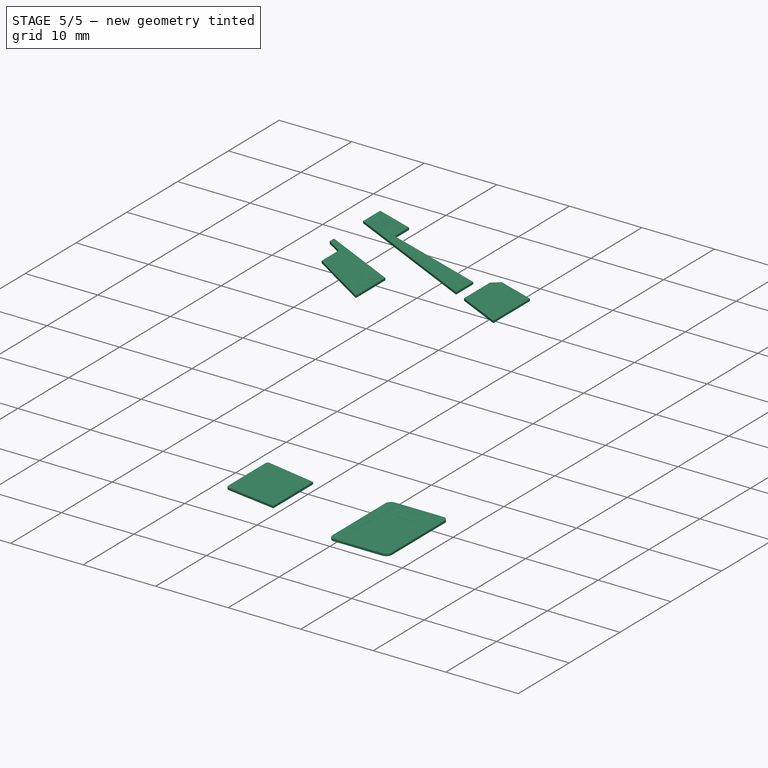
[diagram: stage 5 of 5 — iso view after this stage's code; geometry added in this stage tinted green]
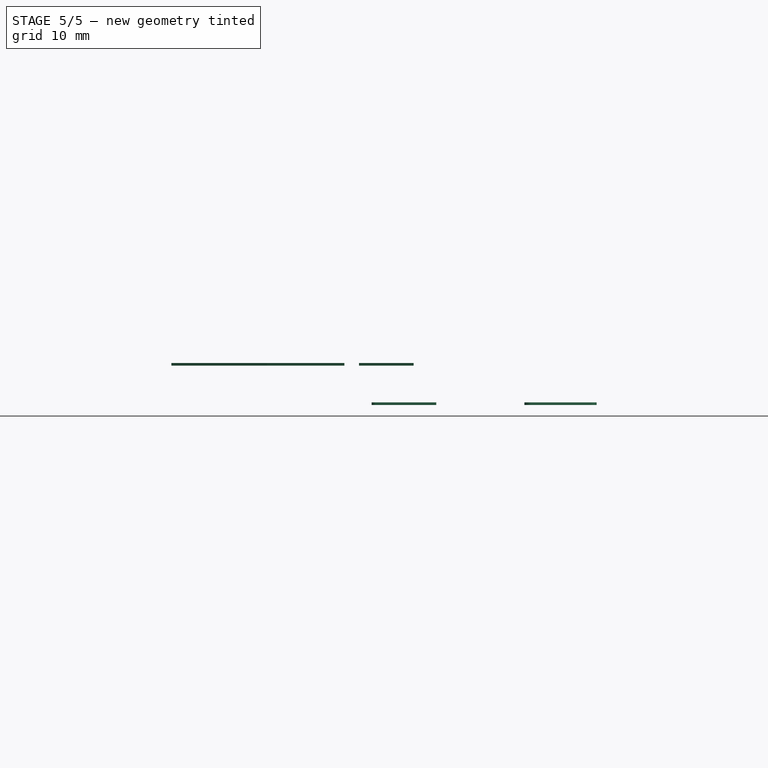
[diagram: stage 5 of 5 — front view after this stage's code; geometry added in this stage tinted green]
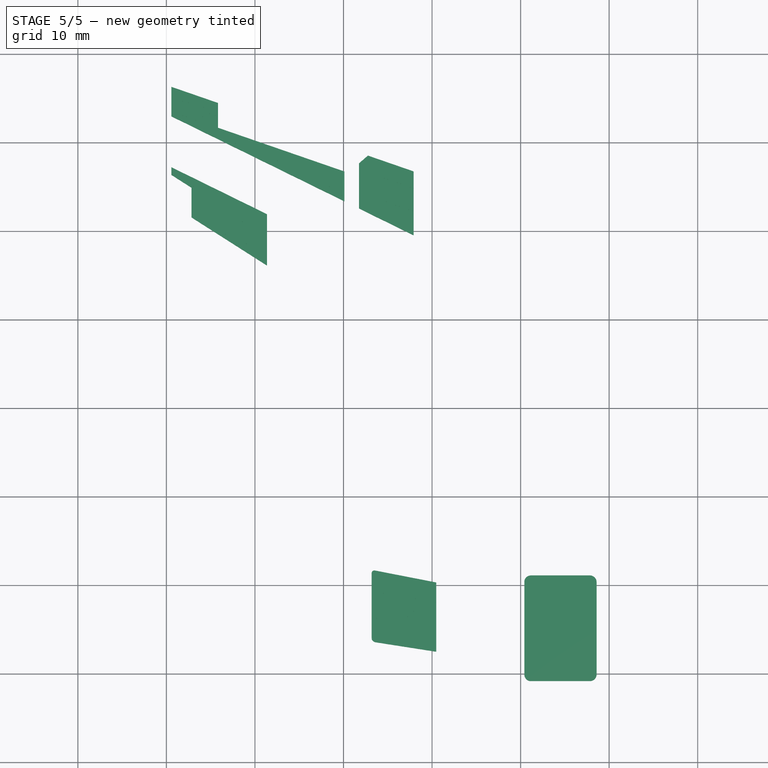
[diagram: stage 5 of 5 — top view after this stage's code; geometry added in this stage tinted green]
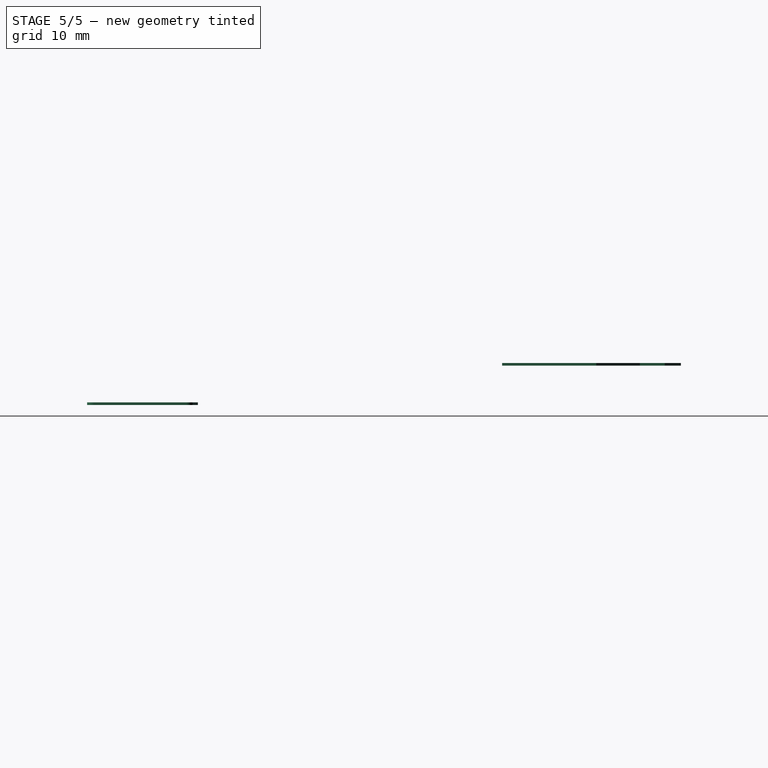
[diagram: stage 5 of 5 — right view after this stage's code; geometry added in this stage tinted green]
FEATURE [Sketcher::SketchObject] Sketch003
  ArcFitTolerance = 1e-06
  AttachmentSupport = -> [Pocket002]
  FullyConstrained = false
  MakeInternals = false
  MapMode = 5
  Placement = pos=(0,0,6.24) rot=(0,0,1;0rad)
  sketch-geometry (7):
    g0: LineSegment StartX=21.8605 StartY=10.0217 StartZ=0 EndX=21.8605 EndY=9.08892 EndZ=0
    g1: LineSegment StartX=21.8605 StartY=9.08892 StartZ=0 EndX=27.0421 EndY=9.08892 EndZ=0
    g2: LineSegment StartX=27.0421 StartY=9.08892 StartZ=0 EndX=27.0421 EndY=10.0217 EndZ=0
    g3: LineSegment StartX=27.0421 StartY=10.0217 StartZ=0 EndX=21.8605 EndY=10.0217 EndZ=0
    g4: LineSegment StartX=23.4916 StartY=8.16928 StartZ=0 EndX=25.6849 EndY=8.16928 EndZ=0
    g5: LineSegment StartX=25.6849 StartY=8.16928 StartZ=0 EndX=24.5626 EndY=5.85367 EndZ=0
    g6: LineSegment StartX=24.5626 StartY=5.85367 StartZ=0 EndX=23.4916 EndY=8.16928 EndZ=0
  constraints (12):
    c: Coincident(g0,g1)
    c: Coincident(g1,g2)
    c: Coincident(g2,g3)
    c: Coincident(g3,g0)
    c: Vertical(g0)
    c: Vertical(g2)
    c: Horizontal(g1)
    c: Horizontal(g3)
    c: Horizontal(g4)
    c: Coincident(g5,g4)
    c: Coincident(g6,g5)
    c: Coincident(g6,g4)
FEATURE [PartDesign::Pocket] Pocket003
  BaseFeature = -> Pocket002
  Direction = (0,0,-1)
  Length = 0.01
  Length2 = 5
  Profile = -> Sketch003
  ReferenceAxis = -> Sketch003 [N_Axis]
  Refine = true
  Suppressed = false
  Type = 0
FEATURE [Sketcher::SketchObject] Sketch004
  ArcFitTolerance = 1e-06
  AttachmentSupport = -> [Pocket003]
  ExternalGeometry = -> [Pocket003]
  FullyConstrained = false
  MakeInternals = false
  MapMode = 5
  Placement = pos=(0,0,6.23) rot=(0,0,1;0rad)
  sketch-geometry (3):
    g0: LineSegment StartX=23.6898 StartY=8.16928 StartZ=0 EndX=25.478 EndY=8.16928 EndZ=0
    g1: LineSegment StartX=25.478 StartY=8.16928 StartZ=0 EndX=24.5792 EndY=6.3852 EndZ=0
    g2: LineSegment StartX=24.5792 StartY=6.3852 StartZ=0 EndX=23.6898 EndY=8.16928 EndZ=0
  constraints (5):
    c: PointOnObject(g0,g-3)
    c: PointOnObject(g0,g-3)
    c: Coincident(g1,g0)
    c: Coincident(g2,g1)
    c: Coincident(g2,g0)
FEATURE [PartDesign::Pocket] Pocket004
  BaseFeature = -> Pocket003
  Direction = (0,0,-1)
  Length = 0.01
  Length2 = 5
  Profile = -> Sketch004
  ReferenceAxis = -> Sketch004 [N_Axis]
  Refine = true
  Suppressed = false
  Type = 0
FEATURE [Sketcher::SketchObject] Sketch005
  ArcFitTolerance = 1e-06
  AttachmentSupport = -> [Pocket004]
  ExternalGeometry = -> [Pocket004]
  FullyConstrained = false
  MakeInternals = false
  MapMode = 5
  Placement = pos=(0,0,6.24) rot=(0,0,1;0rad)
  sketch-geometry (4):
    g0: LineSegment StartX=21.8605 StartY=9.08892 StartZ=0 EndX=21.8605 EndY=8.16928 EndZ=0
    g1: LineSegment StartX=21.8605 StartY=8.16928 StartZ=0 EndX=27.0421 EndY=8.16928 EndZ=0
    g2: LineSegment StartX=27.0421 StartY=8.16928 StartZ=0 EndX=27.0421 EndY=9.08892 EndZ=0
    g3: LineSegment StartX=27.0421 StartY=9.08892 StartZ=0 EndX=21.8605 EndY=9.08892 EndZ=0
  constraints (10):
    c: Coincident(g0,g1)
    c: Coincident(g1,g2)
    c: Coincident(g2,g3)
    c: Coincident(g3,g0)
    c: Vertical(g0)
    c: Vertical(g2)
    c: Horizontal(g1)
    c: Horizontal(g3)
    c: Coincident(g0,g-3)
    c: PointOnObject(g-4,g1)
FEATURE [PartDesign::Pocket] Pocket005
  BaseFeature = -> Pocket004
  Direction = (0,0,-1)
  Length = 0.005
  Length2 = 5
  Profile = -> Sketch005
  ReferenceAxis = -> Sketch005 [N_Axis]
  Refine = true
  Suppressed = false
  Type = 0
FEATURE [Sketcher::SketchObject] Sketch006
  ArcFitTolerance = 1e-06
  AttachmentSupport = -> [Pocket005]
  ExternalGeometry = -> [Pocket005]
  FullyConstrained = false
  MakeInternals = false
  MapMode = 5
  Placement = pos=(0,0,6.24) rot=(0,0,1;0rad)
  sketch-geometry (9):
    g0: LineSegment StartX=21.8605 StartY=8.16928 StartZ=0 EndX=23.4916 EndY=8.16928 EndZ=0
    g1: LineSegment StartX=23.4916 StartY=8.16928 StartZ=0 EndX=24.5626 EndY=5.85367 EndZ=0
    g2: LineSegment StartX=24.5626 StartY=5.85367 StartZ=0 EndX=25.6849 EndY=8.16928 EndZ=0
    g3: LineSegment StartX=25.6849 StartY=8.16928 StartZ=0 EndX=27.0421 EndY=8.16928 EndZ=0
    g4: LineSegment StartX=27.0421 StartY=8.16928 StartZ=0 EndX=27.0421 EndY=1.82446 EndZ=0
    g5: ArcOfCircle CenterX=26.6133 CenterY=1.9627 CenterZ=0 NormalX=0 NormalY=0 NormalZ=1 AngleXU=0 Radius=0.450554 StartAngle=4.83317 EndAngle=5.97134
    g6: LineSegment StartX=26.6676 StartY=1.51543 StartZ=0 EndX=22.2173 EndY=1.51543 EndZ=0
    g7: LineSegment StartX=21.8605 StartY=8.16928 StartZ=0 EndX=21.8605 EndY=1.78516 EndZ=0
    g8: ArcOfCircle CenterX=22.2134 CenterY=1.88114 CenterZ=0 NormalX=0 NormalY=0 NormalZ=1 AngleXU=0 Radius=0.365737 StartAngle=3.40713 EndAngle=4.723
  constraints (17):
    c: Coincident(g0,g-3)
    c: Coincident(g0,g-4)
    c: Coincident(g1,g0)
    c: Coincident(g1,g-5)
    c: Coincident(g2,g1)
    c: Coincident(g2,g-6)
    c: Coincident(g3,g2)
    c: Coincident(g3,g-6)
    c: Coincident(g4,g3)
    c: Vertical(g4)
    c: Coincident(g5,g4)
    c: Coincident(g6,g5)
    c: Horizontal(g6)
    c: Coincident(g7,g0)
    c: Vertical(g7)
    c: Coincident(g8,g7)
    c: Coincident(g8,g6)
FEATURE [PartDesign::Pocket] Pocket006
  BaseFeature = -> Pocket005
  Direction = (0,0,-1)
  Length = 0.002
  Length2 = 5
  Profile = -> Sketch006
  ReferenceAxis = -> Sketch006 [N_Axis]
  Refine = true
  Suppressed = false
  Type = 0
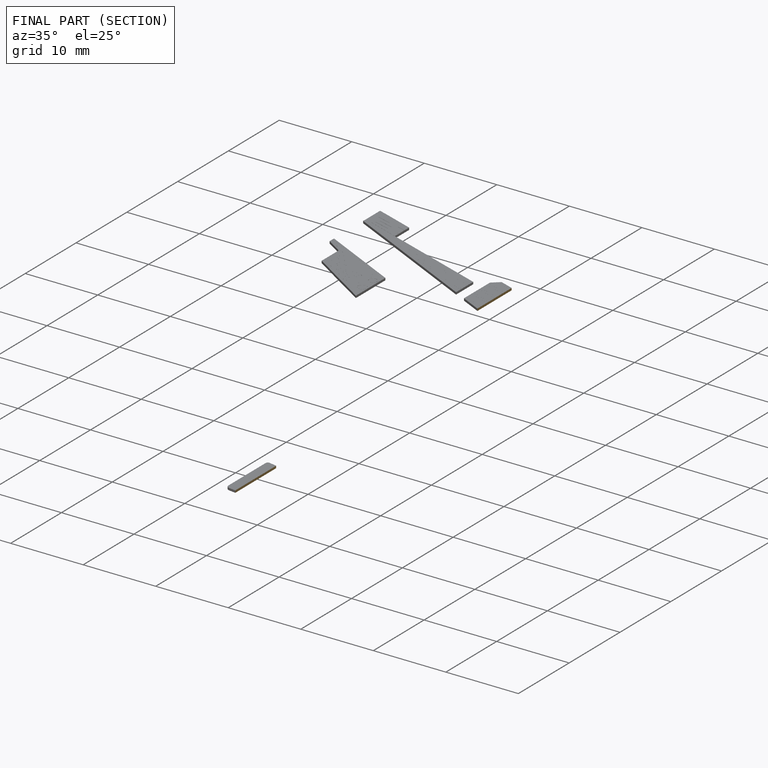
[diagram: finished part — half-section view (interior)]
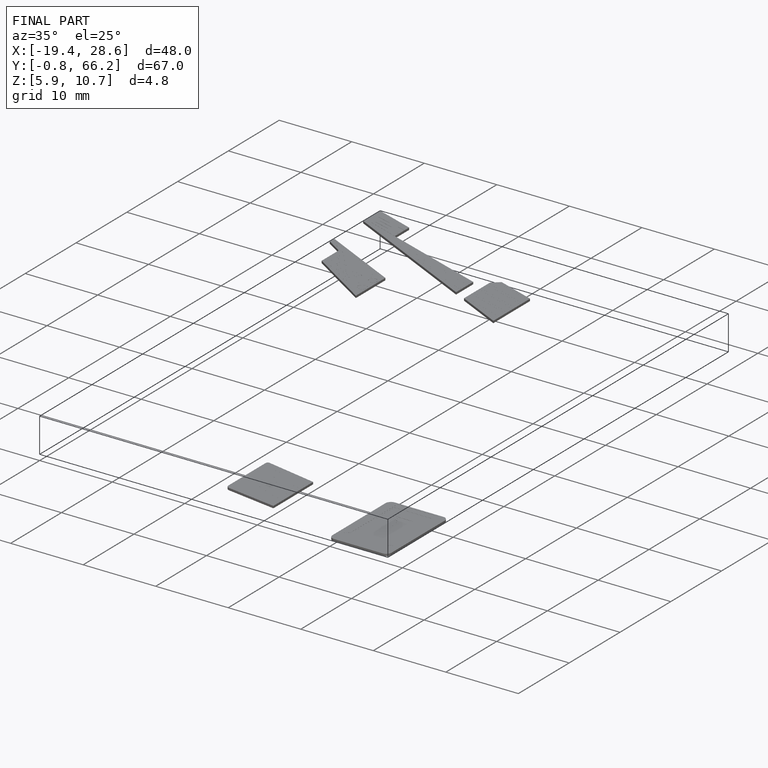
[diagram: finished part — iso view with bounding-box wireframe]
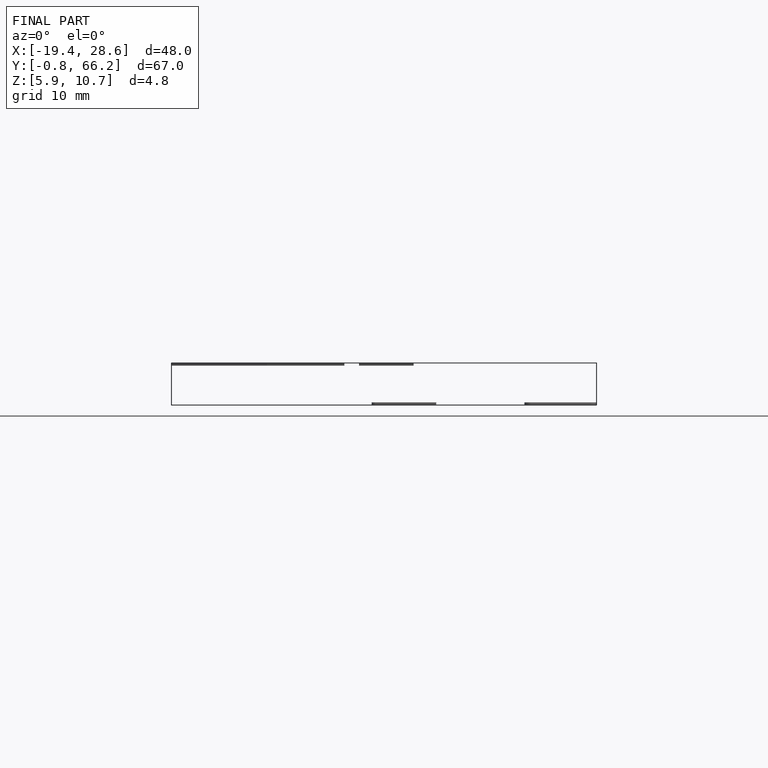
[diagram: finished part — front view with bounding-box wireframe]
